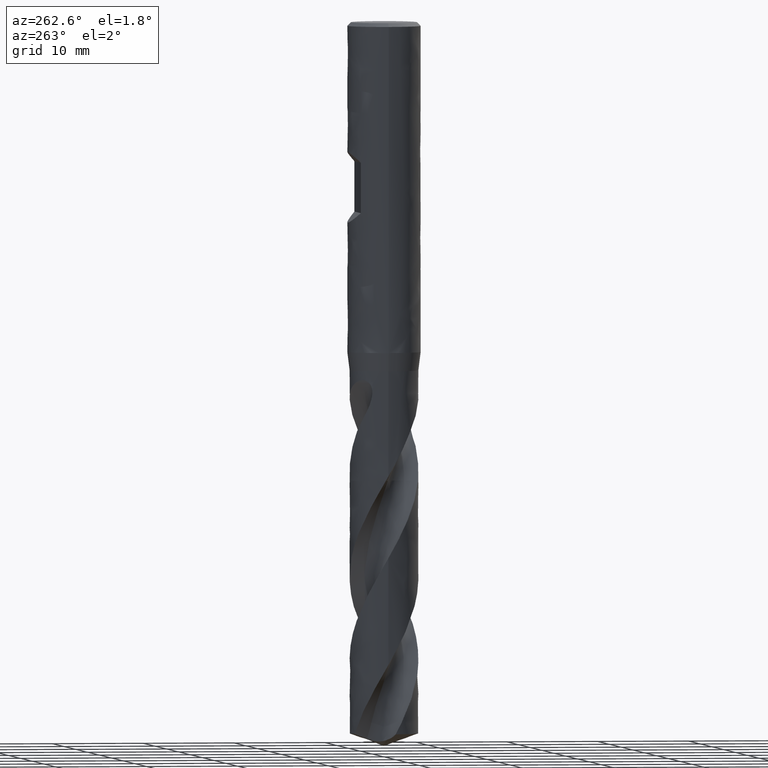
[diagram: clean part render]
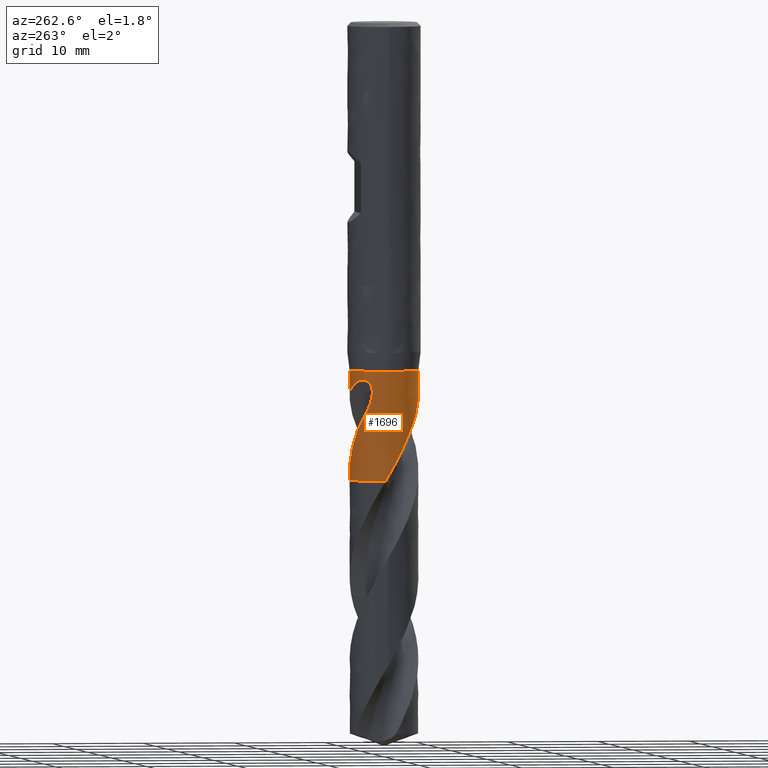
[diagram: same view with one face highlighted and labeled with its STEP entity id]
A machine part, auxiliary view. The second image highlights one B-rep face of the part: STEP entity #1696.
In plain terms, the highlighted face is a freeform B-spline surface patch.
Its self-contained STEP definition (entity closure, byte-faithful):
#75 = VERTEX_POINT('', #76);
#76 = CARTESIAN_POINT('', (-3.75, 2.5564501932201E-15, -38.));
#90 = EDGE_CURVE('', #75, #75, #91, .T.);
#91 = CIRCLE('', #92, 3.75);
#92 = AXIS2_PLACEMENT_3D('', #93, #94, #95);
#93 = CARTESIAN_POINT('', (1.42477179352876E-31, 2.32682891837997E-15, -38.));
#94 = DIRECTION('', (3.74939945665464E-33, 6.12323399573677E-17, -1.));
#95 = DIRECTION('', (-1., 6.12323399573677E-17, 0.));
#420 = VERTEX_POINT('', #421);
#421 = CARTESIAN_POINT('', (-3.73763323144449, 0.304298910944194, -50.));
#430 = VERTEX_POINT('', #431);
#431 = CARTESIAN_POINT('', (-0.648009240886986, -3.69358687778222, -41.2204141752953));
#450 = EDGE_CURVE('', #430, #451, #453, .T.);
#451 = VERTEX_POINT('', #452);
#452 = CARTESIAN_POINT('', (-3.75, 3.25878094856608E-15, -49.4699316706657));
#453 = B_SPLINE_CURVE_WITH_KNOTS('', 3, (#454, #455, #456, #457, #458, #459, #460, #461, #462, #463, #464, #465, #466, #467, #468, #469, #470, #471, #472, #473, #474, #475, #476, #477, #478, #479, #480, #481, #482, #483, #484, #485, #486, #487, #488, #489, #490, #491, #492, #493, #494, #495, #496, #497, #498, #499, #500, #501, #502, #503, #504, #505, #506, #507, #508, #509, #510, #511, #512, #513, #514, #515, #516, #517, #518, #519, #520, #521, #522, #523, #524, #525, #526, #527, #528, #529, #530, #531, #532, #533, #534, #535, #536, #537, #538, #539, #540, #541, #542, #543, #544, #545, #546, #547, #548, #549, #550, #551, #552, #553), .UNSPECIFIED., .F., .U., (4, 3, 3, 3, 3, 3, 3, 3, 3, 3, 3, 3, 3, 3, 3, 3, 3, 3, 3, 3, 3, 3, 3, 3, 3, 3, 3, 3, 3, 3, 3, 3, 3, 4), (0., 0.295133846803441, 0.590274098148489, 0.885424298112096, 1.18059786547586, 1.4758002103448, 1.77103334758276, 2.06630539326419, 2.36161880125892, 2.65697467051245, 2.95238621181922, 3.24785175122504, 3.5433583407267, 3.98669186633912, 4.18372156690037, 4.47933907525572, 4.77502744064786, 4.90640870075493, 5.10347248992651, 5.30047855240471, 5.49746644865739, 5.69447653307913, 6.13770549402274, 6.43315667880416, 6.72857332029199, 7.39264846487526, 7.83556557933928, 8.13092220187732, 8.42627691769983, 8.72163152263029, 8.91857494467247, 9.36134186348495, 9.65663631241959, 9.79135104000095), .UNSPECIFIED.);
#454 = CARTESIAN_POINT('', (-0.648009240886986, -3.69358687778222, -41.2204141752953));
#455 = CARTESIAN_POINT('', (-0.710550330238755, -3.68261456139274, -41.2955569810208));
#456 = CARTESIAN_POINT('', (-0.77246222361471, -3.67011465761915, -41.3710184245421));
#457 = CARTESIAN_POINT('', (-0.833656939838194, -3.65616138958057, -41.4467728557915));
#458 = CARTESIAN_POINT('', (-0.894852984015454, -3.64220781874959, -41.5225289309473));
#459 = CARTESIAN_POINT('', (-0.955349074183969, -3.62679683390146, -41.5985991459727));
#460 = CARTESIAN_POINT('', (-1.01505881355387, -3.61000770151903, -41.674963489374));
#461 = CARTESIAN_POINT('', (-1.07477056562593, -3.59321800320675, -41.7513304068726));
#462 = CARTESIAN_POINT('', (-1.1337095172559, -3.57504636098905, -41.8280140619983));
#463 = CARTESIAN_POINT('', (-1.19180085239418, -3.55557459888448, -41.9049915954452));
#464 = CARTESIAN_POINT('', (-1.2498967866941, -3.53610129517684, -41.981975223297));
#465 = CARTESIAN_POINT('', (-1.30716141414566, -3.51532221785342, -42.0592713573546));
#466 = CARTESIAN_POINT('', (-1.36352808481331, -3.49332093600422, -42.1368572332053));
#467 = CARTESIAN_POINT('', (-1.41990025086516, -3.47131750917296, -42.2144506731749));
#468 = CARTESIAN_POINT('', (-1.47538828735431, -3.44808611168416, -42.2923529208554));
#469 = CARTESIAN_POINT('', (-1.52992701896926, -3.42371484160522, -42.3705467938417));
#470 = CARTESIAN_POINT('', (-1.58447143948464, -3.39934102937459, -42.4487488231811));
#471 = CARTESIAN_POINT('', (-1.63807694392329, -3.37382249159239, -42.5272628996892));
#472 = CARTESIAN_POINT('', (-1.6906894474956, -3.34724800278185, -42.6060693393825));
#473 = CARTESIAN_POINT('', (-1.74330888481064, -3.32067001174929, -42.6848861648879));
#474 = CARTESIAN_POINT('', (-1.79494814518961, -3.29302922622051, -42.7640121990267));
#475 = CARTESIAN_POINT('', (-1.84556015809257, -3.26441536922944, -42.8434285582447));
#476 = CARTESIAN_POINT('', (-1.89617926083002, -3.23579750395065, -42.922856042269));
#477 = CARTESIAN_POINT('', (-1.94578184974934, -3.20619998979205, -43.0025909390289));
#478 = CARTESIAN_POINT('', (-1.99432225815474, -3.17571704196528, -43.0826198065526));
#479 = CARTESIAN_POINT('', (-2.04286964588036, -3.14522971118704, -43.1626601809241));
#480 = CARTESIAN_POINT('', (-2.09036187668851, -3.11385232101134, -43.2430133939081));
#481 = CARTESIAN_POINT('', (-2.13676917983664, -3.0816744591375, -43.3236591324331));
#482 = CARTESIAN_POINT('', (-2.18318523036419, -3.04949053201212, -43.4043200719895));
#483 = CARTESIAN_POINT('', (-2.22852603615393, -3.01649884162125, -43.4852886571491));
#484 = CARTESIAN_POINT('', (-2.27276655949607, -2.98278932645881, -43.5665468060564));
#485 = CARTESIAN_POINT('', (-2.31701516953703, -2.94907364955425, -43.6478198080922));
#486 = CARTESIAN_POINT('', (-2.3601715044041, -2.91463336096858, -43.7293975221309));
#487 = CARTESIAN_POINT('', (-2.40221030159488, -2.87956345075287, -43.8112683236893));
#488 = CARTESIAN_POINT('', (-2.44425493938777, -2.84448866814771, -43.8931504998542));
#489 = CARTESIAN_POINT('', (-2.48518810707653, -2.8087788171833, -43.9753414474045));
#490 = CARTESIAN_POINT('', (-2.52499166095661, -2.7725290101458, -44.0578296968931));
#491 = CARTESIAN_POINT('', (-2.58470691097293, -2.71814526600051, -44.1815826275098));
#492 = CARTESIAN_POINT('', (-2.64189692336124, -2.66252919821222, -44.3060439565044));
#493 = CARTESIAN_POINT('', (-2.69653240374486, -2.60599558624989, -44.431172712391));
#494 = CARTESIAN_POINT('', (-2.72081392480767, -2.5808704829291, -44.4867833979801));
#495 = CARTESIAN_POINT('', (-2.74459349494858, -2.55556199680092, -44.5425330282336));
#496 = CARTESIAN_POINT('', (-2.76787350923635, -2.53009411620747, -44.5984153995732));
#497 = CARTESIAN_POINT('', (-2.8028021509519, -2.49188286489521, -44.6822596490916));
#498 = CARTESIAN_POINT('', (-2.83661427298089, -2.45330386273877, -44.7664097022644));
#499 = CARTESIAN_POINT('', (-2.8693201651302, -2.41443612257149, -44.850846609534));
#500 = CARTESIAN_POINT('', (-2.90203389660749, -2.37555906613296, -44.9353037556219));
#501 = CARTESIAN_POINT('', (-2.93364570976184, -2.33638654711219, -45.0200597651105));
#502 = CARTESIAN_POINT('', (-2.9641453830244, -2.29702898290301, -45.1051207746284));
#503 = CARTESIAN_POINT('', (-2.97769710157367, -2.27954149612385, -45.1429153716584));
#504 = CARTESIAN_POINT('', (-2.9910295968388, -2.26201719847636, -45.1807722526423));
#505 = CARTESIAN_POINT('', (-3.00414064557416, -2.24446852987724, -45.2186937170866));
#506 = CARTESIAN_POINT('', (-3.02380641024787, -2.2181466090322, -45.2755735755097));
#507 = CARTESIAN_POINT('', (-3.0429730733654, -2.19177140762832, -45.3326035590286));
#508 = CARTESIAN_POINT('', (-3.06165736855449, -2.16535312537609, -45.3897688945698));
#509 = CARTESIAN_POINT('', (-3.08033619047737, -2.13894258193821, -45.4469174844378));
#510 = CARTESIAN_POINT('', (-3.09853420122826, -2.11248782967262, -45.5042046213359));
#511 = CARTESIAN_POINT('', (-3.11629111628299, -2.08596013350585, -45.5615923362307));
#512 = CARTESIAN_POINT('', (-3.13404639394585, -2.05943488349786, -45.6189747593179));
#513 = CARTESIAN_POINT('', (-3.15136187953422, -2.03283554620892, -45.6764604475828));
#514 = CARTESIAN_POINT('', (-3.16829608398975, -2.00609070686627, -45.7339889408728));
#515 = CARTESIAN_POINT('', (-3.18523219586699, -1.97934285505926, -45.7915239140124));
#516 = CARTESIAN_POINT('', (-3.20178813149316, -1.95244823691573, -45.8491039281012));
#517 = CARTESIAN_POINT('', (-3.21803463793604, -1.92529298265066, -45.906646918901));
#518 = CARTESIAN_POINT('', (-3.25458567130459, -1.86419968802366, -46.0361058757693));
#519 = CARTESIAN_POINT('', (-3.28956901506274, -1.80177191972681, -46.1653942545529));
#520 = CARTESIAN_POINT('', (-3.32282117231572, -1.73820581543453, -46.2945516570712));
#521 = CARTESIAN_POINT('', (-3.34498666717872, -1.69583340189659, -46.380646454478));
#522 = CARTESIAN_POINT('', (-3.36638693194216, -1.652949687878, -46.46669160047));
#523 = CARTESIAN_POINT('', (-3.38698822449555, -1.60959956732364, -46.552688103452));
#524 = CARTESIAN_POINT('', (-3.40758710840571, -1.56625451513935, -46.6386745519729));
#525 = CARTESIAN_POINT('', (-3.4273891645446, -1.52243969130668, -46.7246201394193));
#526 = CARTESIAN_POINT('', (-3.44637178764993, -1.4781818228116, -46.8105135500674));
#527 = CARTESIAN_POINT('', (-3.48904334508067, -1.37869335028753, -47.0035956960412));
#528 = CARTESIAN_POINT('', (-3.5275891428353, -1.27692470926462, -47.1964743787419));
#529 = CARTESIAN_POINT('', (-3.56174930562797, -1.17321860020193, -47.3890299792672));
#530 = CARTESIAN_POINT('', (-3.58453305360763, -1.10404990603681, -47.5174584736238));
#531 = CARTESIAN_POINT('', (-3.60536864690937, -1.03400957813836, -47.6457811591106));
#532 = CARTESIAN_POINT('', (-3.62417264702601, -0.963261451812788, -47.773993474386));
#533 = CARTESIAN_POINT('', (-3.63671198177576, -0.916083487900276, -47.8594910882078));
#534 = CARTESIAN_POINT('', (-3.64834951837257, -0.868586267162693, -47.9449501957889));
#535 = CARTESIAN_POINT('', (-3.65906443877778, -0.820821194214587, -48.0303698975625));
#536 = CARTESIAN_POINT('', (-3.66977929001133, -0.773056429620516, -48.1157890478974));
#537 = CARTESIAN_POINT('', (-3.6795733755943, -0.725015388381795, -48.2011746542537));
#538 = CARTESIAN_POINT('', (-3.68842833373284, -0.676754332765407, -48.2865278747248));
#539 = CARTESIAN_POINT('', (-3.69728328854676, -0.628493295268815, -48.3718810631496));
#540 = CARTESIAN_POINT('', (-3.70519961161688, -0.580007642059262, -48.4572100776321));
#541 = CARTESIAN_POINT('', (-3.7121603549218, -0.531380748001699, -48.5425311064951));
#542 = CARTESIAN_POINT('', (-3.71680180145266, -0.498956175101493, -48.5994234491772));
#543 = CARTESIAN_POINT('', (-3.72101853822725, -0.466468782366932, -48.6563162554463));
#544 = CARTESIAN_POINT('', (-3.72480749280603, -0.433946012236571, -48.7132157093608));
#545 = CARTESIAN_POINT('', (-3.73332579581394, -0.360828532238779, -48.8411366910853));
#546 = CARTESIAN_POINT('', (-3.73968513075875, -0.287509425397379, -48.9691044638633));
#547 = CARTESIAN_POINT('', (-3.74388316201432, -0.214100138219583, -49.0970730460324));
#548 = CARTESIAN_POINT('', (-3.74668295412515, -0.16514129761335, -49.1824191058824));
#549 = CARTESIAN_POINT('', (-3.74852194986147, -0.116135871963329, -49.267775378178));
#550 = CARTESIAN_POINT('', (-3.74939945951902, -0.0671095593673868, -49.3531241185983));
#551 = CARTESIAN_POINT('', (-3.74979978358502, -0.0447435231296308, -49.3920606186125));
#552 = CARTESIAN_POINT('', (-3.75, -0.0223722490602896, -49.4309966820091));
#553 = CARTESIAN_POINT('', (-3.75, 3.52592836386651E-15, -49.4699316706657));
#555 = EDGE_CURVE('', #420, #451, #556, .T.);
#556 = B_SPLINE_CURVE_WITH_KNOTS('', 3, (#557, #558, #559, #560), .UNSPECIFIED., .F., .U., (4, 4), (31.8302924041851, 32.4416122726892), .UNSPECIFIED.);
#557 = CARTESIAN_POINT('', (-3.73763323144449, 0.304298910944194, -50.));
#558 = CARTESIAN_POINT('', (-3.74587255501038, 0.203097202831192, -49.823325493247));
#559 = CARTESIAN_POINT('', (-3.75, 0.101522681292752, -49.6466141505479));
#560 = CARTESIAN_POINT('', (-3.75, 3.52592836386651E-15, -49.4699316706657));
#599 = VERTEX_POINT('', #600);
#600 = CARTESIAN_POINT('', (-1.04154271346582, -3.60245593672237, -50.));
#673 = EDGE_CURVE('', #674, #599, #676, .T.);
#674 = VERTEX_POINT('', #675);
#675 = CARTESIAN_POINT('', (1.02076795198592, -3.60839753743936, -46.3277837255505));
#676 = B_SPLINE_CURVE_WITH_KNOTS('', 3, (#677, #678, #679, #680, #681, #682, #683, #684, #685, #686, #687, #688, #689, #690, #691, #692, #693, #694, #695, #696, #697, #698, #699, #700, #701, #702, #703, #704, #705, #706, #707, #708, #709, #710, #711, #712, #713, #714, #715, #716, #717, #718, #719), .UNSPECIFIED., .F., .U., (4, 3, 3, 3, 3, 3, 3, 3, 3, 3, 3, 3, 3, 3, 4), (0., 0.295403872865117, 0.73827099609882, 1.181099634165, 1.6238670540652, 1.91915037336844, 2.05045930504764, 2.10883369810828, 2.16722793388203, 2.46310371451943, 2.66028253519062, 2.85745126086149, 3.30136761185504, 3.59717418767811, 4.22493399614494), .UNSPECIFIED.);
#677 = CARTESIAN_POINT('', (1.02076795198592, -3.60839753743936, -46.3277837255505));
#678 = CARTESIAN_POINT('', (0.975554255595064, -3.62118789431876, -46.414317343918));
#679 = CARTESIAN_POINT('', (0.929914459313901, -3.63318061201682, -46.5007510957833));
#680 = CARTESIAN_POINT('', (0.883896120071306, -3.64434186773456, -46.5870857788622));
#681 = CARTESIAN_POINT('', (0.814905793984192, -3.66107473302657, -46.7165180451343));
#682 = CARTESIAN_POINT('', (0.745050739911756, -3.67594174843332, -46.8457476621678));
#683 = CARTESIAN_POINT('', (0.674468879595326, -3.688846937792, -46.9747593767859));
#684 = CARTESIAN_POINT('', (0.60389315284487, -3.7017510056893, -47.1037598802818));
#685 = CARTESIAN_POINT('', (0.532574768624355, -3.71269661954483, -47.23256772144));
#686 = CARTESIAN_POINT('', (0.460652448808201, -3.72159902748899, -47.3611620647133));
#687 = CARTESIAN_POINT('', (0.388740071782856, -3.73050020473341, -47.4897386306588));
#688 = CARTESIAN_POINT('', (0.316215453102483, -3.73735881001637, -47.6181323436412));
#689 = CARTESIAN_POINT('', (0.243273001081689, -3.74210077990255, -47.7463488271795));
#690 = CARTESIAN_POINT('', (0.194627395323993, -3.74526321811525, -47.8318569001472));
#691 = CARTESIAN_POINT('', (0.14579030548463, -3.74748513517793, -47.9172963015238));
#692 = CARTESIAN_POINT('', (0.0968203971382183, -3.74874989972631, -48.0026682814986));
#693 = CARTESIAN_POINT('', (0.0750440693572635, -3.74931232527092, -48.0406321716103));
#694 = CARTESIAN_POINT('', (0.0532407864368432, -3.74968555241968, -48.0785838876448));
#695 = CARTESIAN_POINT('', (0.0314167186805429, -3.74986839632904, -48.1165240821778));
#696 = CARTESIAN_POINT('', (0.021714661911848, -3.74994968099184, -48.1333906867578));
#697 = CARTESIAN_POINT('', (0.0120084516688136, -3.74999334352105, -48.150255126128));
#698 = CARTESIAN_POINT('', (0.00229869738332198, -3.74999929546531, -48.1671174954482));
#699 = CARTESIAN_POINT('', (-0.00741435745671976, -3.75000524943276, -48.1839855966507));
#700 = CARTESIAN_POINT('', (-0.0171309956718087, -3.74997346708943, -48.200851690519));
#701 = CARTESIAN_POINT('', (-0.0268505658249607, -3.74990387171656, -48.2177158958213));
#702 = CARTESIAN_POINT('', (-0.0760983274990126, -3.74955124127274, -48.303164567981));
#703 = CARTESIAN_POINT('', (-0.125426392996611, -3.74822687909562, -48.3885685011461));
#704 = CARTESIAN_POINT('', (-0.174733868783614, -3.74592686462241, -48.4739524851063));
#705 = CARTESIAN_POINT('', (-0.207593570598373, -3.74439407900415, -48.5308544499282));
#706 = CARTESIAN_POINT('', (-0.240445346832913, -3.74242810414674, -48.5877509681759));
#707 = CARTESIAN_POINT('', (-0.273252877119313, -3.74003113157444, -48.6446531958537));
#708 = CARTESIAN_POINT('', (-0.306058727752556, -3.73763428172038, -48.7015525102977));
#709 = CARTESIAN_POINT('', (-0.338818360272944, -3.73480684418917, -48.7584619761104));
#710 = CARTESIAN_POINT('', (-0.371520710331515, -3.73155093249372, -48.8153781956692));
#711 = CARTESIAN_POINT('', (-0.445148552969943, -3.72422039650692, -48.9435224559362));
#712 = CARTESIAN_POINT('', (-0.518497792365884, -3.71471702214746, -49.0717211077288));
#713 = CARTESIAN_POINT('', (-0.591481472195746, -3.70305950101386, -49.1999132763208));
#714 = CARTESIAN_POINT('', (-0.640114626557191, -3.69529143524788, -49.2853349697405));
#715 = CARTESIAN_POINT('', (-0.688594719610076, -3.6865653110213, -49.3707621950418));
#716 = CARTESIAN_POINT('', (-0.736893619200934, -3.67688561067392, -49.4561783056713));
#717 = CARTESIAN_POINT('', (-0.839393395860566, -3.65634338026818, -49.6374481138206));
#718 = CARTESIAN_POINT('', (-0.941097227019274, -3.6314967539722, -49.8187425422837));
#719 = CARTESIAN_POINT('', (-1.04154271346582, -3.60245593672237, -50.));
#722 = VERTEX_POINT('', #723);
#723 = CARTESIAN_POINT('', (1.92935874605463, -3.21559867350117, -44.5909462419548));
#732 = EDGE_CURVE('', #733, #722, #735, .T.);
#733 = VERTEX_POINT('', #734);
#734 = CARTESIAN_POINT('', (2.6371150798521, -2.66610653493379, -39.));
#735 = B_SPLINE_CURVE_WITH_KNOTS('', 3, (#736, #737, #738, #739, #740, #741, #742, #743, #744, #745, #746, #747, #748, #749, #750, #751, #752, #753, #754, #755, #756, #757, #758, #759, #760, #761, #762, #763, #764, #765, #766, #767, #768, #769, #770, #771, #772, #773, #774, #775, #776, #777, #778, #779, #780, #781, #782, #783, #784, #785, #786, #787, #788, #789, #790, #791, #792, #793, #794, #795, #796, #797, #798, #799, #800, #801, #802, #803, #804, #805, #806, #807, #808, #809, #810, #811, #812, #813, #814, #815, #816, #817, #818, #819, #820, #821, #822, #823, #824, #825, #826, #827, #828, #829, #830, #831, #832, #833, #834, #835, #836, #837, #838, #839, #840, #841), .UNSPECIFIED., .F., .U., (4, 3, 3, 3, 3, 3, 3, 3, 3, 3, 3, 3, 3, 3, 3, 3, 3, 3, 3, 3, 3, 3, 3, 3, 3, 3, 3, 3, 3, 3, 3, 3, 3, 3, 3, 4), (0., 0.131417280996042, 0.262636607399301, 0.393628205500983, 0.524373449341624, 0.654876863062062, 0.785177828617779, 0.915353768667735, 1.04550718113931, 1.17573939671159, 1.30612584305896, 1.43670583254022, 1.56748704065535, 1.65487289147945, 1.69376959346173, 1.89047372981505, 2.08752864943431, 2.28484610224182, 2.48235189012683, 2.67998754555484, 2.87770726403293, 3.0754776130696, 3.27327283297236, 3.47107197319015, 3.76830269516791, 4.0654433215532, 4.36245225683465, 4.6593036758443, 4.95598537412121, 5.2524885446229, 5.54882508259146, 5.8450027178984, 6.14102457176276, 6.43689007259166, 6.73262877506573, 6.82472646962934), .UNSPECIFIED.);
#736 = CARTESIAN_POINT('', (2.63711507985039, -2.66610653493548, -39.));
#737 = CARTESIAN_POINT('', (2.6682592862899, -2.63530099308057, -39.0000404295012));
#738 = CARTESIAN_POINT('', (2.69889457158412, -2.60391512401424, -39.001755469018));
#739 = CARTESIAN_POINT('', (2.72883875254603, -2.57214678092115, -39.0053697520598));
#740 = CARTESIAN_POINT('', (2.75873782841899, -2.54042629066273, -39.0089785908866));
#741 = CARTESIAN_POINT('', (2.78801370862747, -2.50825326332227, -39.0144911750834));
#742 = CARTESIAN_POINT('', (2.8164491543552, -2.47590673510371, -39.0221263238338));
#743 = CARTESIAN_POINT('', (2.84483525098217, -2.44361634358493, -39.0297482219487));
#744 = CARTESIAN_POINT('', (2.87246055128404, -2.41106429440907, -39.0395097397075));
#745 = CARTESIAN_POINT('', (2.89907585167787, -2.37862548675032, -39.0515879324387));
#746 = CARTESIAN_POINT('', (2.92564109700896, -2.34624768635163, -39.0636434098638));
#747 = CARTESIAN_POINT('', (2.95128671344615, -2.313876052127, -39.0780515735906));
#748 = CARTESIAN_POINT('', (2.9757465827572, -2.28197990245507, -39.0948955393795));
#749 = CARTESIAN_POINT('', (3.00016121039856, -2.2501427488084, -39.1117083500903));
#750 = CARTESIAN_POINT('', (3.02348742495834, -2.21865804546447, -39.1310179849998));
#751 = CARTESIAN_POINT('', (3.04547263512735, -2.1880576840409, -39.1527577507244));
#752 = CARTESIAN_POINT('', (3.06742373993987, -2.15750479254041, -39.1744637918471));
#753 = CARTESIAN_POINT('', (3.08813144966379, -2.12770501115439, -39.198688884694));
#754 = CARTESIAN_POINT('', (3.10739697506926, -2.099186518471, -39.225184497702));
#755 = CARTESIAN_POINT('', (3.12664401494741, -2.07069538965984, -39.2516546878177));
#756 = CARTESIAN_POINT('', (3.14453850079771, -2.04335756716161, -39.2805095159503));
#757 = CARTESIAN_POINT('', (3.16096855144489, -2.01761686570478, -39.3113369980727));
#758 = CARTESIAN_POINT('', (3.17739575879205, -1.99188061880129, -39.3421591453496));
#759 = CARTESIAN_POINT('', (3.19243294329675, -1.96762863218436, -39.3750846823666));
#760 = CARTESIAN_POINT('', (3.2060635868567, -1.94516227524377, -39.4096054104966));
#761 = CARTESIAN_POINT('', (3.21970248326963, -1.92268231575098, -39.4441470396569));
#762 = CARTESIAN_POINT('', (3.2319903440905, -1.90189855219109, -39.4804190271971));
#763 = CARTESIAN_POINT('', (3.24298770277746, -1.88295798137775, -39.5178997568909));
#764 = CARTESIAN_POINT('', (3.25399808536289, -1.8639949797173, -39.5554248740811));
#765 = CARTESIAN_POINT('', (3.26375524834238, -1.84681143904817, -39.5942865118276));
#766 = CARTESIAN_POINT('', (3.27236533626657, -1.83142706816324, -39.6340123962759));
#767 = CARTESIAN_POINT('', (3.28098820483971, -1.81601986101398, -39.6737972490633));
#768 = CARTESIAN_POINT('', (3.28848672486831, -1.80237072246016, -39.7145588023106));
#769 = CARTESIAN_POINT('', (3.29498348519712, -1.79041443031446, -39.7559038091341));
#770 = CARTESIAN_POINT('', (3.30149025677837, -1.77843971399227, -39.7973125269889));
#771 = CARTESIAN_POINT('', (3.30700787877089, -1.76813377177474, -39.8393987956299));
#772 = CARTESIAN_POINT('', (3.31165585627535, -1.75938497481283, -39.8818519307158));
#773 = CARTESIAN_POINT('', (3.31476155834595, -1.75353917267335, -39.9102184168731));
#774 = CARTESIAN_POINT('', (3.31748218574535, -1.74838150185161, -39.938778713098));
#775 = CARTESIAN_POINT('', (3.31985014678335, -1.74387356276276, -39.967458803241));
#776 = CARTESIAN_POINT('', (3.3209041603786, -1.74186701408652, -39.9802247248243));
#777 = CARTESIAN_POINT('', (3.32188851250824, -1.73998868590515, -39.9930173535457));
#778 = CARTESIAN_POINT('', (3.32280585714919, -1.73823509218259, -40.0058309917484));
#779 = CARTESIAN_POINT('', (3.32744495188323, -1.72936701028536, -40.0706307178882));
#780 = CARTESIAN_POINT('', (3.33038298868049, -1.72367637867176, -40.136058296062));
#781 = CARTESIAN_POINT('', (3.3319124147362, -1.7207148690375, -40.2015415679786));
#782 = CARTESIAN_POINT('', (3.33344456822347, -1.71774807813138, -40.2671416164735));
#783 = CARTESIAN_POINT('', (3.33356602055537, -1.71751071819931, -40.3329491878909));
#784 = CARTESIAN_POINT('', (3.33249251266079, -1.71959112961766, -40.3985924295404));
#785 = CARTESIAN_POINT('', (3.33141757454843, -1.72167431273562, -40.4643231266544));
#786 = CARTESIAN_POINT('', (3.32914229858025, -1.72608321287269, -40.5299984234435));
#787 = CARTESIAN_POINT('', (3.32582040656868, -1.7324602804253, -40.595376689938));
#788 = CARTESIAN_POINT('', (3.32249534388579, -1.73884343474568, -40.6608173585197));
#789 = CARTESIAN_POINT('', (3.31811676180103, -1.74720643258925, -40.7260404754674));
#790 = CARTESIAN_POINT('', (3.31279113783797, -1.75724639053896, -40.7908873626642));
#791 = CARTESIAN_POINT('', (3.30746201207526, -1.76729295014163, -40.8557768891477));
#792 = CARTESIAN_POINT('', (3.30117904420854, -1.77902825745478, -40.9203494880413));
#793 = CARTESIAN_POINT('', (3.29401628355588, -1.79219327185121, -40.9845005663196));
#794 = CARTESIAN_POINT('', (3.28685047626921, -1.80536388590151, -41.0486789308449));
#795 = CARTESIAN_POINT('', (3.27879868546139, -1.81997489376212, -41.1124810888873));
#796 = CARTESIAN_POINT('', (3.26991325484468, -1.83580154313887, -41.1758391399458));
#797 = CARTESIAN_POINT('', (3.26102554891463, -1.85163224528337, -41.2392134152511));
#798 = CARTESIAN_POINT('', (3.25129848405418, -1.86868835432246, -41.3021788401227));
#799 = CARTESIAN_POINT('', (3.24076856928809, -1.88677478261567, -41.3646920645171));
#800 = CARTESIAN_POINT('', (3.23023733031895, -1.90486348539106, -41.4272131503429));
#801 = CARTESIAN_POINT('', (3.21889804358354, -1.92399117386376, -41.4893099374733));
#802 = CARTESIAN_POINT('', (3.20677763892834, -1.94398486991794, -41.5509568534079));
#803 = CARTESIAN_POINT('', (3.19465699404588, -1.96397896224857, -41.6126049911886));
#804 = CARTESIAN_POINT('', (3.18175056787973, -1.98484661488579, -41.6738257109836));
#805 = CARTESIAN_POINT('', (3.1680805202432, -2.00643111450553, -41.734607335066));
#806 = CARTESIAN_POINT('', (3.1475386810623, -2.03886591881478, -41.8259432528517));
#807 = CARTESIAN_POINT('', (3.12526199501863, -2.07293332691324, -41.9163365153016));
#808 = CARTESIAN_POINT('', (3.1013108658107, -2.10816766733684, -42.005785485278));
#809 = CARTESIAN_POINT('', (3.07736699658977, -2.14339132764382, -42.0952073417788));
#810 = CARTESIAN_POINT('', (3.05173609526673, -2.1798009909193, -42.1837322597447));
#811 = CARTESIAN_POINT('', (3.02447974715309, -2.21698494786518, -42.2713948422534));
#812 = CARTESIAN_POINT('', (2.99723547890417, -2.25415242508428, -42.359018573184));
#813 = CARTESIAN_POINT('', (2.96835578740216, -2.29210880851496, -42.4458170301574));
#814 = CARTESIAN_POINT('', (2.93791768056344, -2.3304805732365, -42.5318560856013));
#815 = CARTESIAN_POINT('', (2.90749571632698, -2.36883198780489, -42.6178495109323));
#816 = CARTESIAN_POINT('', (2.87550617325235, -2.40761203286192, -42.7031121442896));
#817 = CARTESIAN_POINT('', (2.84203970423943, -2.44648938675939, -42.7877274083576));
#818 = CARTESIAN_POINT('', (2.80859236922176, -2.48534451306228, -42.8722942948074));
#819 = CARTESIAN_POINT('', (2.77366032737526, -2.52430765770652, -42.9562370011173));
#820 = CARTESIAN_POINT('', (2.7373597468444, -2.56307659197996, -43.0396590661362));
#821 = CARTESIAN_POINT('', (2.70108101013445, -2.60182219710427, -43.1230309320504));
#822 = CARTESIAN_POINT('', (2.6634293319033, -2.64038028927926, -43.2059035653106));
#823 = CARTESIAN_POINT('', (2.6245438265322, -2.6784827239711, -43.2883921016191));
#824 = CARTESIAN_POINT('', (2.5856801745202, -2.71656374538361, -43.3708342799958));
#825 = CARTESIAN_POINT('', (2.54557482902086, -2.75419863023207, -43.4529072189859));
#826 = CARTESIAN_POINT('', (2.50439304812864, -2.7911494873055, -43.5347360372537));
#827 = CARTESIAN_POINT('', (2.46323334988151, -2.82808053045529, -43.6165209769735));
#828 = CARTESIAN_POINT('', (2.42099089094853, -2.86433467244727, -43.6980760893453));
#829 = CARTESIAN_POINT('', (2.37786856365152, -2.89969672448711, -43.7795425808428));
#830 = CARTESIAN_POINT('', (2.33476891753483, -2.93504017704196, -43.8609662231645));
#831 = CARTESIAN_POINT('', (2.29078596838029, -2.96949602634463, -43.9423170305049));
#832 = CARTESIAN_POINT('', (2.2461507129811, -3.00288311037484, -44.0237390499973));
#833 = CARTESIAN_POINT('', (2.20153903306318, -3.03625255999102, -44.1051180639489));
#834 = CARTESIAN_POINT('', (2.15626848225364, -3.06856003455226, -44.1865813582732));
#835 = CARTESIAN_POINT('', (2.11058593433816, -3.09966562935003, -44.2682625241118));
#836 = CARTESIAN_POINT('', (2.06492296448064, -3.13075789329903, -44.3499086840527));
#837 = CARTESIAN_POINT('', (2.01884098879748, -3.16065457603457, -44.4317868056723));
#838 = CARTESIAN_POINT('', (1.97259954831314, -3.18925555921672, -44.5140160223153));
#839 = CARTESIAN_POINT('', (1.95819923470427, -3.19816235630244, -44.5396234968029));
#840 = CARTESIAN_POINT('', (1.94378297342664, -3.20694413913263, -44.5652658308292));
#841 = CARTESIAN_POINT('', (1.92935874605463, -3.21559867350117, -44.5909462419548));
#843 = EDGE_CURVE('', #733, #844, #846, .T.);
#844 = VERTEX_POINT('', #845);
#845 = CARTESIAN_POINT('', (2.6348547856778, -2.66834035654951, -39.));
#846 = LINE('', #847, #848);
#847 = CARTESIAN_POINT('', (2.6371150798521, -2.66610653493379, -39.));
#848 = VECTOR('', #849, 0.00317787488193326);
#849 = DIRECTION('', (-0.00226029417429485, -0.00223382161572294, 0.));
#851 = EDGE_CURVE('', #844, #430, #852, .T.);
#852 = B_SPLINE_CURVE_WITH_KNOTS('', 3, (#853, #854, #855, #856, #857, #858, #859, #860, #861, #862, #863, #864, #865, #866, #867, #868, #869, #870, #871, #872, #873, #874, #875, #876, #877, #878, #879, #880, #881, #882, #883, #884, #885, #886, #887, #888, #889, #890, #891, #892, #893, #894, #895, #896, #897, #898, #899, #900, #901, #902, #903, #904, #905, #906, #907, #908, #909, #910, #911, #912, #913, #914, #915, #916), .UNSPECIFIED., .F., .U., (4, 3, 3, 3, 3, 3, 3, 3, 3, 3, 3, 3, 3, 3, 3, 3, 3, 3, 3, 3, 3, 4), (0., 0.131490502076642, 0.262776425271715, 0.39389897037994, 0.524892412722011, 0.720903301936283, 0.916654035829249, 1.11222513877361, 1.30767289937623, 1.50303716855077, 1.69834664123014, 1.98996152834197, 2.28152382180528, 2.57308920910896, 2.86469774632364, 3.1563801220159, 3.3517338304837, 3.39060515928735, 3.68432929852823, 3.97802892967202, 4.27173764357677, 4.31464617207614), .UNSPECIFIED.);
#853 = CARTESIAN_POINT('', (2.63485478568019, -2.66834035654716, -39.));
#854 = CARTESIAN_POINT('', (2.60366711776213, -2.69913664378482, -39.0000404093541));
#855 = CARTESIAN_POINT('', (2.57191712512801, -2.72940530748686, -39.0017507765369));
#856 = CARTESIAN_POINT('', (2.53975414798396, -2.75901229931986, -39.0049213453407));
#857 = CARTESIAN_POINT('', (2.50764121145721, -2.78857322725333, -39.0080869812299));
#858 = CARTESIAN_POINT('', (2.4750703903372, -2.81751785690468, -39.0127123150212));
#859 = CARTESIAN_POINT('', (2.44216390730832, -2.84575744747168, -39.0186114083855));
#860 = CARTESIAN_POINT('', (2.40929837458173, -2.87396189542653, -39.0245031606536));
#861 = CARTESIAN_POINT('', (2.37605933063469, -2.9014968129842, -39.0316722668771));
#862 = CARTESIAN_POINT('', (2.34254779773546, -2.92830493892366, -39.0399577009023));
#863 = CARTESIAN_POINT('', (2.30906926016584, -2.95508666968287, -39.0482349771203));
#864 = CARTESIAN_POINT('', (2.27528604916562, -2.98116959578622, -39.0576344667633));
#865 = CARTESIAN_POINT('', (2.24128285665123, -3.00651811178391, -39.0680182289616));
#866 = CARTESIAN_POINT('', (2.19040247759023, -3.04444814150246, -39.0835558805073));
#867 = CARTESIAN_POINT('', (2.13895529397182, -3.08078801667192, -39.1013176756465));
#868 = CARTESIAN_POINT('', (2.08717507338556, -3.11547752568334, -39.120922916374));
#869 = CARTESIAN_POINT('', (2.03546357806237, -3.15012099306717, -39.1405021360589));
#870 = CARTESIAN_POINT('', (1.98334311299743, -3.18317105943134, -39.1619496663523));
#871 = CARTESIAN_POINT('', (1.93100366244877, -3.21461115154064, -39.1849648124268));
#872 = CARTESIAN_POINT('', (1.87871224127382, -3.24602239260321, -39.2079588386186));
#873 = CARTESIAN_POINT('', (1.82613874992105, -3.27586540120379, -39.2325461299089));
#874 = CARTESIAN_POINT('', (1.77344253857673, -3.30414914348104, -39.2584868944861));
#875 = CARTESIAN_POINT('', (1.72077956156004, -3.33241504783156, -39.2844112988004));
#876 = CARTESIAN_POINT('', (1.66794040907348, -3.35915281587142, -39.3117143466638));
#877 = CARTESIAN_POINT('', (1.61506228422016, -3.3843867713501, -39.3402025308629));
#878 = CARTESIAN_POINT('', (1.56220674785874, -3.40960994738075, -39.3686785454716));
#879 = CARTESIAN_POINT('', (1.50926619265039, -3.43335282515347, -39.398363879923));
#880 = CARTESIAN_POINT('', (1.45636126886745, -3.45564926671426, -39.4291004619446));
#881 = CARTESIAN_POINT('', (1.40347118405385, -3.47793945448637, -39.4598284228556));
#882 = CARTESIAN_POINT('', (1.35057653184001, -3.49880110316783, -39.491630661058));
#883 = CARTESIAN_POINT('', (1.29778519665119, -3.51827423367701, -39.5243765499817));
#884 = CARTESIAN_POINT('', (1.21896290994703, -3.54734939668497, -39.573269153965));
#885 = CARTESIAN_POINT('', (1.14027627990422, -3.57336312561754, -39.6243225638734));
#886 = CARTESIAN_POINT('', (1.06204386670388, -3.59646532378621, -39.6771882680123));
#887 = CARTESIAN_POINT('', (0.983825562961683, -3.61956335540185, -39.7300444376576));
#888 = CARTESIAN_POINT('', (0.905961252788113, -3.63978087449084, -39.7847808324581));
#889 = CARTESIAN_POINT('', (0.828732006381056, -3.65728085626461, -39.8411261154169));
#890 = CARTESIAN_POINT('', (0.751501940475164, -3.67478102373507, -39.8974719962697));
#891 = CARTESIAN_POINT('', (0.674821428421336, -3.68958321852288, -39.9554898055934));
#892 = CARTESIAN_POINT('', (0.598942794608102, -3.7018600093449, -40.0149650993559));
#893 = CARTESIAN_POINT('', (0.52305293121674, -3.71413861705759, -40.0744491951017));
#894 = CARTESIAN_POINT('', (0.447891214700431, -3.72390318061647, -40.1354495613603));
#895 = CARTESIAN_POINT('', (0.373687353055116, -3.73133458191163, -40.1977950055509));
#896 = CARTESIAN_POINT('', (0.299464702178775, -3.73876786491904, -40.2601562362913));
#897 = CARTESIAN_POINT('', (0.226135842024504, -3.7438733421468, -40.3239177205144));
#898 = CARTESIAN_POINT('', (0.153912443781349, -3.74684012998299, -40.3889420053239));
#899 = CARTESIAN_POINT('', (0.105540962126138, -3.74882713041338, -40.4324918946438));
#900 = CARTESIAN_POINT('', (0.057643410623038, -3.74985612863981, -40.4766278056466));
#901 = CARTESIAN_POINT('', (0.0102753682383784, -3.74998592221459, -40.5213110573444));
#902 = CARTESIAN_POINT('', (0.000850112046618611, -3.75001174843904, -40.5302020959757));
#903 = CARTESIAN_POINT('', (-0.00855456960139373, -3.75000198332476, -40.5391151695118));
#904 = CARTESIAN_POINT('', (-0.017938256819967, -3.74995709561353, -40.5480499939922));
#905 = CARTESIAN_POINT('', (-0.0888443857332189, -3.74961790977269, -40.6155643731128));
#906 = CARTESIAN_POINT('', (-0.158578407325767, -3.74727199828066, -40.6843467392972));
#907 = CARTESIAN_POINT('', (-0.226969509509388, -3.74312501016905, -40.7542856067762));
#908 = CARTESIAN_POINT('', (-0.29535490519651, -3.73897836807867, -40.8242186386144));
#909 = CARTESIAN_POINT('', (-0.362443262931455, -3.73302827189152, -40.8953548265106));
#910 = CARTESIAN_POINT('', (-0.428081004910762, -3.72548609623423, -40.9675987767086));
#911 = CARTESIAN_POINT('', (-0.493720776759559, -3.7179436873326, -41.0398449610753));
#912 = CARTESIAN_POINT('', (-0.557948303109349, -3.70880489846436, -41.1132449227318));
#913 = CARTESIAN_POINT('', (-0.620633404314052, -3.69828530233263, -41.1877089739252));
#914 = CARTESIAN_POINT('', (-0.62979120360359, -3.69674847223855, -41.1985875849829));
#915 = CARTESIAN_POINT('', (-0.638916599890714, -3.69518210637292, -41.2094894126633));
#916 = CARTESIAN_POINT('', (-0.648009240886986, -3.69358687778222, -41.2204141752953));
#1013 = EDGE_CURVE('', #722, #674, #1014, .T.);
#1014 = B_SPLINE_CURVE_WITH_KNOTS('', 3, (#1015, #1016, #1017, #1018, #1019, #1020, #1021, #1022, #1023, #1024, #1025, #1026, #1027, #1028, #1029, #1030, #1031, #1032, #1033, #1034, #1035, #1036, #1037, #1038, #1039, #1040, #1041, #1042), .UNSPECIFIED., .F., .U., (4, 3, 3, 3, 3, 3, 3, 3, 3, 4), (0., 0.295489765091771, 0.59108180076374, 0.722447567801552, 0.853807973557614, 1.05080414741633, 1.24776602270372, 1.44473356163744, 1.53230255157831, 2.00134854833594), .UNSPECIFIED.);
#1015 = CARTESIAN_POINT('', (1.92935874605463, -3.21559867350117, -44.5909462419548));
#1016 = CARTESIAN_POINT('', (1.88307950336587, -3.24336621252218, -44.6733402550395));
#1017 = CARTESIAN_POINT('', (1.83688661266497, -3.26972216145551, -44.7562720251446));
#1018 = CARTESIAN_POINT('', (1.7909352565885, -3.29470042746096, -44.8397354124556));
#1019 = CARTESIAN_POINT('', (1.74496799650317, -3.3196873385772, -44.9232276868891));
#1020 = CARTESIAN_POINT('', (1.69923041219378, -3.34330146253941, -45.0072711070741));
#1021 = CARTESIAN_POINT('', (1.65392154164252, -3.36556734208228, -45.0918857126368));
#1022 = CARTESIAN_POINT('', (1.63378556429776, -3.37546265045306, -45.1294897791234));
#1023 = CARTESIAN_POINT('', (1.61373341255249, -3.38509232801171, -45.1672098937058));
#1024 = CARTESIAN_POINT('', (1.59378645361729, -3.39445794498415, -45.2050496158992));
#1025 = CARTESIAN_POINT('', (1.57384030875465, -3.40382317972831, -45.2428877937831));
#1026 = CARTESIAN_POINT('', (1.5540011244894, -3.41292373106067, -45.2808489903792));
#1027 = CARTESIAN_POINT('', (1.53426365793714, -3.42177366696474, -45.3189199119711));
#1028 = CARTESIAN_POINT('', (1.50466413462508, -3.43504557718733, -45.3760134162559));
#1029 = CARTESIAN_POINT('', (1.47529332075807, -3.44775456265326, -45.4333590785473));
#1030 = CARTESIAN_POINT('', (1.44608856982827, -3.45996067148344, -45.4908919999327));
#1031 = CARTESIAN_POINT('', (1.41688890367353, -3.4721646551348, -45.5484149043874));
#1032 = CARTESIAN_POINT('', (1.3878532185405, -3.48386723315099, -45.6061290820202));
#1033 = CARTESIAN_POINT('', (1.35886321018235, -3.49513816265007, -45.6639476588017));
#1034 = CARTESIAN_POINT('', (1.32987236821539, -3.50640941624516, -45.7217678981585));
#1035 = CARTESIAN_POINT('', (1.30092544110397, -3.51725009253903, -45.7796952096878));
#1036 = CARTESIAN_POINT('', (1.27185073497016, -3.52773237476369, -45.8376216576839));
#1037 = CARTESIAN_POINT('', (1.25892453066894, -3.53239264960724, -45.8633749395157));
#1038 = CARTESIAN_POINT('', (1.24597197612584, -3.53698221696121, -45.8891279087482));
#1039 = CARTESIAN_POINT('', (1.23297595062976, -3.54150678457188, -45.9148702484554));
#1040 = CARTESIAN_POINT('', (1.16336530721804, -3.56574173722209, -46.0527540061078));
#1041 = CARTESIAN_POINT('', (1.09255882962425, -3.58808884739681, -46.1903845544207));
#1042 = CARTESIAN_POINT('', (1.02076795198592, -3.60839753743936, -46.3277837255505));
#1064 = VERTEX_POINT('', #1065);
#1065 = CARTESIAN_POINT('', (1.04154271346582, 3.60245593672238, -50.));
#1138 = EDGE_CURVE('', #1139, #1064, #1141, .T.);
#1139 = VERTEX_POINT('', #1140);
#1140 = CARTESIAN_POINT('', (-1.02076795198594, 3.60839753743936, -46.3277837255505));
#1141 = B_SPLINE_CURVE_WITH_KNOTS('', 3, (#1142, #1143, #1144, #1145, #1146, #1147, #1148, #1149, #1150, #1151, #1152, #1153, #1154, #1155, #1156, #1157, #1158, #1159, #1160, #1161, #1162, #1163, #1164, #1165, #1166, #1167, #1168, #1169, #1170, #1171, #1172, #1173, #1174, #1175, #1176, #1177, #1178, #1179, #1180, #1181, #1182, #1183, #1184), .UNSPECIFIED., .F., .U., (4, 3, 3, 3, 3, 3, 3, 3, 3, 3, 3, 3, 3, 3, 4), (0., 0.295403872865114, 0.738270996098812, 1.18109963416499, 1.62386705406519, 1.91915037336843, 2.05045930504764, 2.10883369810828, 2.16722793388202, 2.46310371451943, 2.66028253519061, 2.85745126086148, 3.30136761185503, 3.5971741876781, 4.22493399614493), .UNSPECIFIED.);
#1142 = CARTESIAN_POINT('', (-1.02076795198592, 3.60839753743937, -46.3277837255505));
#1143 = CARTESIAN_POINT('', (-0.975554255595062, 3.62118789431877, -46.414317343918));
#1144 = CARTESIAN_POINT('', (-0.929914459313897, 3.63318061201682, -46.5007510957833));
#1145 = CARTESIAN_POINT('', (-0.883896120071302, 3.64434186773456, -46.5870857788623));
#1146 = CARTESIAN_POINT('', (-0.814905793984189, 3.66107473302658, -46.7165180451343));
#1147 = CARTESIAN_POINT('', (-0.745050739911755, 3.67594174843333, -46.8457476621678));
#1148 = CARTESIAN_POINT('', (-0.674468879595325, 3.688846937792, -46.9747593767859));
#1149 = CARTESIAN_POINT('', (-0.60389315284487, 3.7017510056893, -47.1037598802818));
#1150 = CARTESIAN_POINT('', (-0.532574768624355, 3.71269661954484, -47.23256772144));
#1151 = CARTESIAN_POINT('', (-0.460652448808202, 3.72159902748899, -47.3611620647133));
#1152 = CARTESIAN_POINT('', (-0.388740071782856, 3.73050020473341, -47.4897386306588));
#1153 = CARTESIAN_POINT('', (-0.316215453102485, 3.73735881001637, -47.6181323436412));
#1154 = CARTESIAN_POINT('', (-0.24327300108169, 3.74210077990256, -47.7463488271795));
#1155 = CARTESIAN_POINT('', (-0.194627395323994, 3.74526321811525, -47.8318569001472));
#1156 = CARTESIAN_POINT('', (-0.145790305484632, 3.74748513517794, -47.9172963015238));
#1157 = CARTESIAN_POINT('', (-0.0968203971382214, 3.74874989972632, -48.0026682814986));
#1158 = CARTESIAN_POINT('', (-0.0750440693572661, 3.74931232527093, -48.0406321716103));
#1159 = CARTESIAN_POINT('', (-0.0532407864368441, 3.74968555241969, -48.0785838876448));
#1160 = CARTESIAN_POINT('', (-0.0314167186805434, 3.74986839632905, -48.1165240821778));
#1161 = CARTESIAN_POINT('', (-0.0217146619118485, 3.74994968099184, -48.1333906867578));
#1162 = CARTESIAN_POINT('', (-0.0120084516688148, 3.74999334352106, -48.150255126128));
#1163 = CARTESIAN_POINT('', (-0.00229869738332314, 3.74999929546532, -48.1671174954482));
#1164 = CARTESIAN_POINT('', (0.00741435745671844, 3.75000524943277, -48.1839855966508));
#1165 = CARTESIAN_POINT('', (0.0171309956718084, 3.74997346708944, -48.2008516905191));
#1166 = CARTESIAN_POINT('', (0.0268505658249602, 3.74990387171657, -48.2177158958213));
#1167 = CARTESIAN_POINT('', (0.0760983274990124, 3.74955124127275, -48.303164567981));
#1168 = CARTESIAN_POINT('', (0.12542639299661, 3.74822687909563, -48.3885685011461));
#1169 = CARTESIAN_POINT('', (0.174733868783614, 3.74592686462242, -48.4739524851063));
#1170 = CARTESIAN_POINT('', (0.207593570598372, 3.74439407900415, -48.5308544499282));
#1171 = CARTESIAN_POINT('', (0.240445346832912, 3.74242810414675, -48.5877509681759));
#1172 = CARTESIAN_POINT('', (0.273252877119311, 3.74003113157445, -48.6446531958537));
#1173 = CARTESIAN_POINT('', (0.306058727752554, 3.73763428172039, -48.7015525102977));
#1174 = CARTESIAN_POINT('', (0.338818360272944, 3.73480684418917, -48.7584619761104));
#1175 = CARTESIAN_POINT('', (0.371520710331514, 3.73155093249372, -48.8153781956692));
#1176 = CARTESIAN_POINT('', (0.445148552969943, 3.72422039650693, -48.9435224559362));
#1177 = CARTESIAN_POINT('', (0.518497792365884, 3.71471702214746, -49.0717211077288));
#1178 = CARTESIAN_POINT('', (0.591481472195746, 3.70305950101387, -49.1999132763208));
#1179 = CARTESIAN_POINT('', (0.640114626557192, 3.69529143524788, -49.2853349697405));
#1180 = CARTESIAN_POINT('', (0.688594719610076, 3.68656531102131, -49.3707621950418));
#1181 = CARTESIAN_POINT('', (0.736893619200933, 3.67688561067393, -49.4561783056713));
#1182 = CARTESIAN_POINT('', (0.839393395860565, 3.65634338026819, -49.6374481138206));
#1183 = CARTESIAN_POINT('', (0.941097227019275, 3.63149675397221, -49.8187425422837));
#1184 = CARTESIAN_POINT('', (1.04154271346582, 3.60245593672238, -50.));
#1187 = VERTEX_POINT('', #1188);
#1188 = CARTESIAN_POINT('', (-1.92935874605463, 3.21559867350118, -44.5909462419548));
#1197 = EDGE_CURVE('', #1198, #1187, #1200, .T.);
#1198 = VERTEX_POINT('', #1199);
#1199 = CARTESIAN_POINT('', (-2.63711507985051, 2.66610653493537, -39.));
#1200 = B_SPLINE_CURVE_WITH_KNOTS('', 3, (#1201, #1202, #1203, #1204, #1205, #1206, #1207, #1208, #1209, #1210, #1211, #1212, #1213, #1214, #1215, #1216, #1217, #1218, #1219, #1220, #1221, #1222, #1223, #1224, #1225, #1226, #1227, #1228, #1229, #1230, #1231, #1232, #1233, #1234, #1235, #1236, #1237, #1238, #1239, #1240, #1241, #1242, #1243, #1244, #1245, #1246, #1247, #1248, #1249, #1250, #1251, #1252, #1253, #1254, #1255, #1256, #1257, #1258, #1259, #1260, #1261, #1262, #1263, #1264, #1265, #1266, #1267, #1268, #1269, #1270, #1271, #1272, #1273, #1274, #1275, #1276, #1277, #1278, #1279, #1280, #1281, #1282, #1283, #1284, #1285, #1286, #1287, #1288, #1289, #1290, #1291, #1292, #1293, #1294, #1295, #1296, #1297, #1298, #1299, #1300, #1301, #1302, #1303, #1304, #1305, #1306), .UNSPECIFIED., .F., .U., (4, 3, 3, 3, 3, 3, 3, 3, 3, 3, 3, 3, 3, 3, 3, 3, 3, 3, 3, 3, 3, 3, 3, 3, 3, 3, 3, 3, 3, 3, 3, 3, 3, 3, 3, 4), (0., 0.131417280996042, 0.2626366073993, 0.393628205500983, 0.524373449341624, 0.654876863062063, 0.785177828617778, 0.915353768667735, 1.04550718113931, 1.17573939671159, 1.30612584305896, 1.43670583254022, 1.56748704065535, 1.65487289147945, 1.69376959346173, 1.89047372981504, 2.0875286494343, 2.28484610224181, 2.48235189012682, 2.67998754555484, 2.87770726403293, 3.0754776130696, 3.27327283297236, 3.47107197319015, 3.76830269516791, 4.0654433215532, 4.36245225683464, 4.6593036758443, 4.9559853741212, 5.2524885446229, 5.54882508259146, 5.8450027178984, 6.14102457176276, 6.43689007259165, 6.73262877506572, 6.82472646962932), .UNSPECIFIED.);
#1201 = CARTESIAN_POINT('', (-2.6371150798504, 2.66610653493547, -39.));
#1202 = CARTESIAN_POINT('', (-2.66825928628991, 2.63530099308056, -39.0000404295012));
#1203 = CARTESIAN_POINT('', (-2.69889457158413, 2.60391512401424, -39.001755469018));
#1204 = CARTESIAN_POINT('', (-2.72883875254604, 2.57214678092114, -39.0053697520598));
#1205 = CARTESIAN_POINT('', (-2.758737828419, 2.54042629066272, -39.0089785908866));
#1206 = CARTESIAN_POINT('', (-2.78801370862747, 2.50825326332227, -39.0144911750834));
#1207 = CARTESIAN_POINT('', (-2.8164491543552, 2.4759067351037, -39.0221263238338));
#1208 = CARTESIAN_POINT('', (-2.84483525098217, 2.44361634358492, -39.0297482219487));
#1209 = CARTESIAN_POINT('', (-2.87246055128405, 2.41106429440907, -39.0395097397075));
#1210 = CARTESIAN_POINT('', (-2.89907585167788, 2.37862548675032, -39.0515879324387));
#1211 = CARTESIAN_POINT('', (-2.92564109700897, 2.34624768635162, -39.0636434098638));
#1212 = CARTESIAN_POINT('', (-2.95128671344616, 2.31387605212699, -39.0780515735906));
#1213 = CARTESIAN_POINT('', (-2.97574658275721, 2.28197990245506, -39.0948955393795));
#1214 = CARTESIAN_POINT('', (-3.00016121039857, 2.2501427488084, -39.1117083500904));
#1215 = CARTESIAN_POINT('', (-3.02348742495835, 2.21865804546446, -39.1310179849998));
#1216 = CARTESIAN_POINT('', (-3.04547263512736, 2.1880576840409, -39.1527577507244));
#1217 = CARTESIAN_POINT('', (-3.06742373993987, 2.1575047925404, -39.1744637918471));
#1218 = CARTESIAN_POINT('', (-3.0881314496638, 2.12770501115438, -39.198688884694));
#1219 = CARTESIAN_POINT('', (-3.10739697506926, 2.099186518471, -39.225184497702));
#1220 = CARTESIAN_POINT('', (-3.12664401494742, 2.07069538965984, -39.2516546878177));
#1221 = CARTESIAN_POINT('', (-3.14453850079771, 2.04335756716161, -39.2805095159503));
#1222 = CARTESIAN_POINT('', (-3.1609685514449, 2.01761686570478, -39.3113369980727));
#1223 = CARTESIAN_POINT('', (-3.17739575879205, 1.99188061880129, -39.3421591453496));
#1224 = CARTESIAN_POINT('', (-3.19243294329676, 1.96762863218435, -39.3750846823666));
#1225 = CARTESIAN_POINT('', (-3.20606358685671, 1.94516227524377, -39.4096054104967));
#1226 = CARTESIAN_POINT('', (-3.21970248326963, 1.92268231575097, -39.4441470396569));
#1227 = CARTESIAN_POINT('', (-3.23199034409051, 1.90189855219109, -39.4804190271971));
#1228 = CARTESIAN_POINT('', (-3.24298770277746, 1.88295798137775, -39.5178997568909));
#1229 = CARTESIAN_POINT('', (-3.2539980853629, 1.8639949797173, -39.5554248740811));
#1230 = CARTESIAN_POINT('', (-3.26375524834238, 1.84681143904817, -39.5942865118276));
#1231 = CARTESIAN_POINT('', (-3.27236533626657, 1.83142706816324, -39.6340123962759));
#1232 = CARTESIAN_POINT('', (-3.28098820483972, 1.81601986101398, -39.6737972490633));
#1233 = CARTESIAN_POINT('', (-3.28848672486831, 1.80237072246016, -39.7145588023106));
#1234 = CARTESIAN_POINT('', (-3.29498348519712, 1.79041443031446, -39.7559038091341));
#1235 = CARTESIAN_POINT('', (-3.30149025677837, 1.77843971399227, -39.7973125269889));
#1236 = CARTESIAN_POINT('', (-3.3070078787709, 1.76813377177474, -39.8393987956299));
#1237 = CARTESIAN_POINT('', (-3.31165585627536, 1.75938497481283, -39.8818519307158));
#1238 = CARTESIAN_POINT('', (-3.31476155834595, 1.75353917267335, -39.9102184168731));
#1239 = CARTESIAN_POINT('', (-3.31748218574535, 1.74838150185161, -39.938778713098));
#1240 = CARTESIAN_POINT('', (-3.31985014678336, 1.74387356276276, -39.967458803241));
#1241 = CARTESIAN_POINT('', (-3.3209041603786, 1.74186701408652, -39.9802247248243));
#1242 = CARTESIAN_POINT('', (-3.32188851250824, 1.73998868590516, -39.9930173535457));
#1243 = CARTESIAN_POINT('', (-3.32280585714919, 1.73823509218259, -40.0058309917484));
#1244 = CARTESIAN_POINT('', (-3.32744495188323, 1.72936701028536, -40.0706307178882));
#1245 = CARTESIAN_POINT('', (-3.33038298868049, 1.72367637867176, -40.136058296062));
#1246 = CARTESIAN_POINT('', (-3.33191241473621, 1.72071486903751, -40.2015415679786));
#1247 = CARTESIAN_POINT('', (-3.33344456822347, 1.71774807813138, -40.2671416164735));
#1248 = CARTESIAN_POINT('', (-3.33356602055537, 1.71751071819931, -40.3329491878909));
#1249 = CARTESIAN_POINT('', (-3.33249251266079, 1.71959112961767, -40.3985924295404));
#1250 = CARTESIAN_POINT('', (-3.33141757454843, 1.72167431273563, -40.4643231266544));
#1251 = CARTESIAN_POINT('', (-3.32914229858025, 1.72608321287269, -40.5299984234435));
#1252 = CARTESIAN_POINT('', (-3.32582040656868, 1.73246028042531, -40.595376689938));
#1253 = CARTESIAN_POINT('', (-3.32249534388579, 1.73884343474569, -40.6608173585197));
#1254 = CARTESIAN_POINT('', (-3.31811676180103, 1.74720643258925, -40.7260404754675));
#1255 = CARTESIAN_POINT('', (-3.31279113783797, 1.75724639053896, -40.7908873626643));
#1256 = CARTESIAN_POINT('', (-3.30746201207526, 1.76729295014164, -40.8557768891477));
#1257 = CARTESIAN_POINT('', (-3.30117904420854, 1.77902825745479, -40.9203494880413));
#1258 = CARTESIAN_POINT('', (-3.29401628355587, 1.79219327185121, -40.9845005663196));
#1259 = CARTESIAN_POINT('', (-3.28685047626921, 1.80536388590152, -41.0486789308449));
#1260 = CARTESIAN_POINT('', (-3.27879868546138, 1.81997489376212, -41.1124810888873));
#1261 = CARTESIAN_POINT('', (-3.26991325484468, 1.83580154313887, -41.1758391399458));
#1262 = CARTESIAN_POINT('', (-3.26102554891463, 1.85163224528337, -41.2392134152512));
#1263 = CARTESIAN_POINT('', (-3.25129848405417, 1.86868835432247, -41.3021788401228));
#1264 = CARTESIAN_POINT('', (-3.24076856928809, 1.88677478261568, -41.3646920645171));
#1265 = CARTESIAN_POINT('', (-3.23023733031895, 1.90486348539107, -41.4272131503429));
#1266 = CARTESIAN_POINT('', (-3.21889804358353, 1.92399117386377, -41.4893099374733));
#1267 = CARTESIAN_POINT('', (-3.20677763892834, 1.94398486991795, -41.5509568534079));
#1268 = CARTESIAN_POINT('', (-3.19465699404588, 1.96397896224857, -41.6126049911886));
#1269 = CARTESIAN_POINT('', (-3.18175056787973, 1.9848466148858, -41.6738257109836));
#1270 = CARTESIAN_POINT('', (-3.1680805202432, 2.00643111450554, -41.7346073350661));
#1271 = CARTESIAN_POINT('', (-3.1475386810623, 2.03886591881479, -41.8259432528517));
#1272 = CARTESIAN_POINT('', (-3.12526199501863, 2.07293332691325, -41.9163365153016));
#1273 = CARTESIAN_POINT('', (-3.1013108658107, 2.10816766733685, -42.005785485278));
#1274 = CARTESIAN_POINT('', (-3.07736699658977, 2.14339132764383, -42.0952073417788));
#1275 = CARTESIAN_POINT('', (-3.05173609526673, 2.17980099091931, -42.1837322597447));
#1276 = CARTESIAN_POINT('', (-3.02447974715309, 2.21698494786519, -42.2713948422534));
#1277 = CARTESIAN_POINT('', (-2.99723547890416, 2.25415242508429, -42.359018573184));
#1278 = CARTESIAN_POINT('', (-2.96835578740216, 2.29210880851497, -42.4458170301574));
#1279 = CARTESIAN_POINT('', (-2.93791768056344, 2.33048057323651, -42.5318560856013));
#1280 = CARTESIAN_POINT('', (-2.90749571632698, 2.3688319878049, -42.6178495109323));
#1281 = CARTESIAN_POINT('', (-2.87550617325234, 2.40761203286193, -42.7031121442896));
#1282 = CARTESIAN_POINT('', (-2.84203970423942, 2.4464893867594, -42.7877274083576));
#1283 = CARTESIAN_POINT('', (-2.80859236922176, 2.48534451306229, -42.8722942948074));
#1284 = CARTESIAN_POINT('', (-2.77366032737526, 2.52430765770653, -42.9562370011173));
#1285 = CARTESIAN_POINT('', (-2.7373597468444, 2.56307659197997, -43.0396590661363));
#1286 = CARTESIAN_POINT('', (-2.70108101013444, 2.60182219710428, -43.1230309320504));
#1287 = CARTESIAN_POINT('', (-2.6634293319033, 2.64038028927928, -43.2059035653106));
#1288 = CARTESIAN_POINT('', (-2.62454382653219, 2.67848272397111, -43.2883921016191));
#1289 = CARTESIAN_POINT('', (-2.5856801745202, 2.71656374538362, -43.3708342799958));
#1290 = CARTESIAN_POINT('', (-2.54557482902085, 2.75419863023207, -43.4529072189859));
#1291 = CARTESIAN_POINT('', (-2.50439304812863, 2.79114948730551, -43.5347360372537));
#1292 = CARTESIAN_POINT('', (-2.4632333498815, 2.8280805304553, -43.6165209769735));
#1293 = CARTESIAN_POINT('', (-2.42099089094852, 2.86433467244728, -43.6980760893454));
#1294 = CARTESIAN_POINT('', (-2.37786856365151, 2.89969672448712, -43.7795425808429));
#1295 = CARTESIAN_POINT('', (-2.33476891753482, 2.93504017704197, -43.8609662231645));
#1296 = CARTESIAN_POINT('', (-2.29078596838028, 2.96949602634464, -43.9423170305049));
#1297 = CARTESIAN_POINT('', (-2.24615071298109, 3.00288311037485, -44.0237390499973));
#1298 = CARTESIAN_POINT('', (-2.20153903306317, 3.03625255999103, -44.1051180639489));
#1299 = CARTESIAN_POINT('', (-2.15626848225363, 3.06856003455227, -44.1865813582732));
#1300 = CARTESIAN_POINT('', (-2.11058593433816, 3.09966562935003, -44.2682625241118));
#1301 = CARTESIAN_POINT('', (-2.06492296448063, 3.13075789329904, -44.3499086840527));
#1302 = CARTESIAN_POINT('', (-2.01884098879748, 3.16065457603458, -44.4317868056723));
#1303 = CARTESIAN_POINT('', (-1.97259954831314, 3.18925555921673, -44.5140160223154));
#1304 = CARTESIAN_POINT('', (-1.95819923470427, 3.19816235630244, -44.5396234968029));
#1305 = CARTESIAN_POINT('', (-1.94378297342664, 3.20694413913263, -44.5652658308292));
#1306 = CARTESIAN_POINT('', (-1.92935874605463, 3.21559867350118, -44.5909462419548));
#1308 = EDGE_CURVE('', #1198, #1309, #1311, .T.);
#1309 = VERTEX_POINT('', #1310);
#1310 = CARTESIAN_POINT('', (-2.63485478567939, 2.66834035654795, -39.));
#1311 = LINE('', #1312, #1313);
#1312 = CARTESIAN_POINT('', (-2.63711507985051, 2.66610653493537, -39.));
#1313 = VECTOR('', #1314, 0.00317787487746251);
#1314 = DIRECTION('', (0.00226029417111606, 0.00223382161257923, 0.));
#1316 = EDGE_CURVE('', #1309, #1317, #1319, .T.);
#1317 = VERTEX_POINT('', #1318);
#1318 = CARTESIAN_POINT('', (0.648009240886985, 3.69358687778223, -41.2204141752953));
#1319 = B_SPLINE_CURVE_WITH_KNOTS('', 3, (#1320, #1321, #1322, #1323, #1324, #1325, #1326, #1327, #1328, #1329, #1330, #1331, #1332, #1333, #1334, #1335, #1336, #1337, #1338, #1339, #1340, #1341, #1342, #1343, #1344, #1345, #1346, #1347, #1348, #1349, #1350, #1351, #1352, #1353, #1354, #1355, #1356, #1357, #1358, #1359, #1360, #1361, #1362, #1363, #1364, #1365, #1366, #1367, #1368, #1369, #1370, #1371, #1372, #1373, #1374, #1375, #1376, #1377, #1378, #1379, #1380, #1381, #1382, #1383), .UNSPECIFIED., .F., .U., (4, 3, 3, 3, 3, 3, 3, 3, 3, 3, 3, 3, 3, 3, 3, 3, 3, 3, 3, 3, 3, 4), (0., 0.131490502076641, 0.262776425271711, 0.393898970379935, 0.524892412722007, 0.720903301936281, 0.916654035829246, 1.1122251387736, 1.30767289937623, 1.50303716855076, 1.69834664123013, 1.98996152834196, 2.28152382180527, 2.57308920910895, 2.86469774632364, 3.1563801220159, 3.3517338304837, 3.39060515928734, 3.68432929852822, 3.97802892967202, 4.27173764357677, 4.3146461720765), .UNSPECIFIED.);
#1320 = CARTESIAN_POINT('', (-2.63485478568044, 2.66834035654691, -39.));
#1321 = CARTESIAN_POINT('', (-2.60366711776239, 2.69913664378458, -39.0000404093541));
#1322 = CARTESIAN_POINT('', (-2.57191712512827, 2.72940530748662, -39.0017507765369));
#1323 = CARTESIAN_POINT('', (-2.53975414798422, 2.75901229931962, -39.0049213453407));
#1324 = CARTESIAN_POINT('', (-2.50764121145747, 2.7885732272531, -39.0080869812299));
#1325 = CARTESIAN_POINT('', (-2.47507039033747, 2.81751785690445, -39.0127123150212));
#1326 = CARTESIAN_POINT('', (-2.44216390730859, 2.84575744747146, -39.0186114083855));
#1327 = CARTESIAN_POINT('', (-2.40929837458201, 2.87396189542631, -39.0245031606536));
#1328 = CARTESIAN_POINT('', (-2.37605933063497, 2.90149681298397, -39.0316722668771));
#1329 = CARTESIAN_POINT('', (-2.34254779773574, 2.92830493892345, -39.0399577009023));
#1330 = CARTESIAN_POINT('', (-2.30906926016612, 2.95508666968266, -39.0482349771202));
#1331 = CARTESIAN_POINT('', (-2.2752860491659, 2.98116959578601, -39.0576344667632));
#1332 = CARTESIAN_POINT('', (-2.24128285665151, 3.00651811178371, -39.0680182289615));
#1333 = CARTESIAN_POINT('', (-2.19040247759052, 3.04444814150227, -39.0835558805072));
#1334 = CARTESIAN_POINT('', (-2.1389552939721, 3.08078801667173, -39.1013176756464));
#1335 = CARTESIAN_POINT('', (-2.08717507338585, 3.11547752568315, -39.1209229163739));
#1336 = CARTESIAN_POINT('', (-2.03546357806265, 3.15012099306699, -39.1405021360588));
#1337 = CARTESIAN_POINT('', (-1.98334311299772, 3.18317105943116, -39.1619496663522));
#1338 = CARTESIAN_POINT('', (-1.93100366244906, 3.21461115154047, -39.1849648124266));
#1339 = CARTESIAN_POINT('', (-1.87871224127411, 3.24602239260305, -39.2079588386184));
#1340 = CARTESIAN_POINT('', (-1.82613874992134, 3.27586540120363, -39.2325461299088));
#1341 = CARTESIAN_POINT('', (-1.77344253857702, 3.30414914348089, -39.2584868944859));
#1342 = CARTESIAN_POINT('', (-1.72077956156033, 3.33241504783142, -39.2844112988002));
#1343 = CARTESIAN_POINT('', (-1.66794040907378, 3.35915281587128, -39.3117143466637));
#1344 = CARTESIAN_POINT('', (-1.61506228422045, 3.38438677134996, -39.3402025308628));
#1345 = CARTESIAN_POINT('', (-1.56220674785903, 3.40960994738062, -39.3686785454715));
#1346 = CARTESIAN_POINT('', (-1.50926619265069, 3.43335282515335, -39.3983638799228));
#1347 = CARTESIAN_POINT('', (-1.45636126886775, 3.45564926671413, -39.4291004619444));
#1348 = CARTESIAN_POINT('', (-1.40347118405415, 3.47793945448626, -39.4598284228554));
#1349 = CARTESIAN_POINT('', (-1.35057653184031, 3.49880110316772, -39.4916306610578));
#1350 = CARTESIAN_POINT('', (-1.29778519665149, 3.51827423367691, -39.5243765499816));
#1351 = CARTESIAN_POINT('', (-1.21896290994732, 3.54734939668487, -39.5732691539648));
#1352 = CARTESIAN_POINT('', (-1.14027627990452, 3.57336312561745, -39.6243225638733));
#1353 = CARTESIAN_POINT('', (-1.06204386670418, 3.59646532378613, -39.6771882680121));
#1354 = CARTESIAN_POINT('', (-0.983825562961975, 3.61956335540178, -39.7300444376574));
#1355 = CARTESIAN_POINT('', (-0.905961252788403, 3.63978087449077, -39.7847808324578));
#1356 = CARTESIAN_POINT('', (-0.828732006381344, 3.65728085626455, -39.8411261154167));
#1357 = CARTESIAN_POINT('', (-0.75150194047545, 3.67478102373502, -39.8974719962694));
#1358 = CARTESIAN_POINT('', (-0.674821428421622, 3.68958321852283, -39.9554898055932));
#1359 = CARTESIAN_POINT('', (-0.598942794608386, 3.70186000934486, -40.0149650993557));
#1360 = CARTESIAN_POINT('', (-0.523052931217022, 3.71413861705756, -40.0744491951015));
#1361 = CARTESIAN_POINT('', (-0.447891214700709, 3.72390318061644, -40.1354495613601));
#1362 = CARTESIAN_POINT('', (-0.373687353055391, 3.7313345819116, -40.1977950055507));
#1363 = CARTESIAN_POINT('', (-0.299464702179049, 3.73876786491902, -40.260156236291));
#1364 = CARTESIAN_POINT('', (-0.226135842024776, 3.74387334214679, -40.3239177205142));
#1365 = CARTESIAN_POINT('', (-0.153912443781619, 3.74684012998299, -40.3889420053236));
#1366 = CARTESIAN_POINT('', (-0.105540962126407, 3.74882713041338, -40.4324918946436));
#1367 = CARTESIAN_POINT('', (-0.0576434106233049, 3.74985612863981, -40.4766278056464));
#1368 = CARTESIAN_POINT('', (-0.0102753682386436, 3.74998592221459, -40.5213110573442));
#1369 = CARTESIAN_POINT('', (-0.000850112046884067, 3.75001174843904, -40.5302020959755));
#1370 = CARTESIAN_POINT('', (0.00855456960112837, 3.75000198332477, -40.5391151695116));
#1371 = CARTESIAN_POINT('', (0.0179382568197014, 3.74995709561353, -40.548049993992));
#1372 = CARTESIAN_POINT('', (0.088844385732957, 3.74961790977271, -40.6155643731125));
#1373 = CARTESIAN_POINT('', (0.158578407325509, 3.74727199828067, -40.6843467392969));
#1374 = CARTESIAN_POINT('', (0.226969509509134, 3.74312501016907, -40.7542856067759));
#1375 = CARTESIAN_POINT('', (0.295354905196261, 3.7389783680787, -40.8242186386141));
#1376 = CARTESIAN_POINT('', (0.362443262931209, 3.73302827189155, -40.8953548265103));
#1377 = CARTESIAN_POINT('', (0.42808100491052, 3.72548609623426, -40.9675987767083));
#1378 = CARTESIAN_POINT('', (0.493720776759322, 3.71794368733264, -41.0398449610751));
#1379 = CARTESIAN_POINT('', (0.557948303109117, 3.7088048984644, -41.1132449227315));
#1380 = CARTESIAN_POINT('', (0.620633404313824, 3.69828530233267, -41.1877089739249));
#1381 = CARTESIAN_POINT('', (0.629791203603439, 3.69674847223859, -41.1985875849827));
#1382 = CARTESIAN_POINT('', (0.638916599890638, 3.69518210637294, -41.2094894126632));
#1383 = CARTESIAN_POINT('', (0.648009240886985, 3.69358687778223, -41.2204141752953));
#1498 = EDGE_CURVE('', #1187, #1139, #1499, .T.);
#1499 = B_SPLINE_CURVE_WITH_KNOTS('', 3, (#1500, #1501, #1502, #1503, #1504, #1505, #1506, #1507, #1508, #1509, #1510, #1511, #1512, #1513, #1514, #1515, #1516, #1517, #1518, #1519, #1520, #1521, #1522, #1523, #1524, #1525, #1526, #1527), .UNSPECIFIED., .F., .U., (4, 3, 3, 3, 3, 3, 3, 3, 3, 4), (0., 0.295489765091772, 0.591081800763743, 0.722447567801554, 0.853807973557615, 1.05080414741634, 1.24776602270372, 1.44473356163743, 1.53230255157831, 2.00134854833592), .UNSPECIFIED.);
#1500 = CARTESIAN_POINT('', (-1.92935874605463, 3.21559867350118, -44.5909462419548));
#1501 = CARTESIAN_POINT('', (-1.88307950336587, 3.24336621252218, -44.6733402550395));
#1502 = CARTESIAN_POINT('', (-1.83688661266497, 3.26972216145552, -44.7562720251446));
#1503 = CARTESIAN_POINT('', (-1.79093525658851, 3.29470042746096, -44.8397354124556));
#1504 = CARTESIAN_POINT('', (-1.74496799650317, 3.3196873385772, -44.9232276868891));
#1505 = CARTESIAN_POINT('', (-1.69923041219378, 3.34330146253942, -45.0072711070742));
#1506 = CARTESIAN_POINT('', (-1.65392154164252, 3.36556734208229, -45.0918857126368));
#1507 = CARTESIAN_POINT('', (-1.63378556429776, 3.37546265045307, -45.1294897791234));
#1508 = CARTESIAN_POINT('', (-1.61373341255249, 3.38509232801171, -45.1672098937058));
#1509 = CARTESIAN_POINT('', (-1.59378645361729, 3.39445794498416, -45.2050496158992));
#1510 = CARTESIAN_POINT('', (-1.57384030875465, 3.40382317972832, -45.2428877937831));
#1511 = CARTESIAN_POINT('', (-1.5540011244894, 3.41292373106068, -45.2808489903792));
#1512 = CARTESIAN_POINT('', (-1.53426365793714, 3.42177366696475, -45.3189199119711));
#1513 = CARTESIAN_POINT('', (-1.50466413462508, 3.43504557718733, -45.3760134162559));
#1514 = CARTESIAN_POINT('', (-1.47529332075807, 3.44775456265326, -45.4333590785473));
#1515 = CARTESIAN_POINT('', (-1.44608856982827, 3.45996067148344, -45.4908919999327));
#1516 = CARTESIAN_POINT('', (-1.41688890367354, 3.47216465513481, -45.5484149043874));
#1517 = CARTESIAN_POINT('', (-1.3878532185405, 3.483867233151, -45.6061290820202));
#1518 = CARTESIAN_POINT('', (-1.35886321018235, 3.49513816265008, -45.6639476588017));
#1519 = CARTESIAN_POINT('', (-1.32987236821539, 3.50640941624517, -45.7217678981585));
#1520 = CARTESIAN_POINT('', (-1.30092544110397, 3.51725009253904, -45.7796952096878));
#1521 = CARTESIAN_POINT('', (-1.27185073497016, 3.52773237476369, -45.8376216576839));
#1522 = CARTESIAN_POINT('', (-1.25892453066894, 3.53239264960724, -45.8633749395157));
#1523 = CARTESIAN_POINT('', (-1.24597197612584, 3.53698221696121, -45.8891279087482));
#1524 = CARTESIAN_POINT('', (-1.23297595062976, 3.54150678457188, -45.9148702484554));
#1525 = CARTESIAN_POINT('', (-1.16336530721804, 3.5657417372221, -46.0527540061078));
#1526 = CARTESIAN_POINT('', (-1.09255882962426, 3.58808884739682, -46.1903845544207));
#1527 = CARTESIAN_POINT('', (-1.02076795198594, 3.60839753743936, -46.3277837255505));
#1547 = VERTEX_POINT('', #1548);
#1548 = CARTESIAN_POINT('', (3.73763323144449, -0.304298910944183, -50.));
#1555 = EDGE_CURVE('', #1317, #1547, #1556, .T.);
#1556 = B_SPLINE_CURVE_WITH_KNOTS('', 3, (#1557, #1558, #1559, #1560, #1561, #1562, #1563, #1564, #1565, #1566, #1567, #1568, #1569, #1570, #1571, #1572, #1573, #1574, #1575, #1576, #1577, #1578, #1579, #1580, #1581, #1582, #1583, #1584, #1585, #1586, #1587, #1588, #1589, #1590, #1591, #1592, #1593, #1594, #1595, #1596, #1597, #1598, #1599, #1600, #1601, #1602, #1603, #1604, #1605, #1606, #1607, #1608, #1609, #1610, #1611, #1612, #1613, #1614, #1615, #1616, #1617, #1618, #1619, #1620, #1621, #1622, #1623, #1624, #1625, #1626, #1627, #1628, #1629, #1630, #1631, #1632, #1633, #1634, #1635, #1636, #1637, #1638, #1639, #1640, #1641, #1642, #1643, #1644, #1645, #1646, #1647, #1648, #1649, #1650, #1651, #1652, #1653, #1654, #1655, #1656, #1657, #1658, #1659, #1660, #1661, #1662), .UNSPECIFIED., .F., .U., (4, 3, 3, 3, 3, 3, 3, 3, 3, 3, 3, 3, 3, 3, 3, 3, 3, 3, 3, 3, 3, 3, 3, 3, 3, 3, 3, 3, 3, 3, 3, 3, 3, 3, 3, 4), (0., 0.295133846803442, 0.590274098148488, 0.885424298112096, 1.18059786547586, 1.4758002103448, 1.77103334758276, 2.06630539326419, 2.36161880125892, 2.65697467051245, 2.95238621181922, 3.24785175122504, 3.5433583407267, 3.98669186633912, 4.18372156690037, 4.47933907525572, 4.77502744064786, 4.90640870075493, 5.10347248992651, 5.30047855240471, 5.49746644865739, 5.69447653307912, 6.13770549402273, 6.43315667880415, 6.72857332029199, 7.39264846487526, 7.83556557933927, 8.13092220187731, 8.42627691769982, 8.72163152263029, 8.91857494467247, 9.36134186348495, 9.6566363124196, 9.78794715673078, 9.87554826450061, 10.4026737499228), .UNSPECIFIED.);
#1557 = CARTESIAN_POINT('', (0.648009240886985, 3.69358687778223, -41.2204141752953));
#1558 = CARTESIAN_POINT('', (0.710550330238755, 3.68261456139274, -41.2955569810208));
#1559 = CARTESIAN_POINT('', (0.772462223614709, 3.67011465761916, -41.3710184245421));
#1560 = CARTESIAN_POINT('', (0.833656939838193, 3.65616138958057, -41.4467728557915));
#1561 = CARTESIAN_POINT('', (0.894852984015452, 3.64220781874959, -41.5225289309473));
#1562 = CARTESIAN_POINT('', (0.955349074183968, 3.62679683390147, -41.5985991459727));
#1563 = CARTESIAN_POINT('', (1.01505881355387, 3.61000770151903, -41.674963489374));
#1564 = CARTESIAN_POINT('', (1.07477056562593, 3.59321800320676, -41.7513304068726));
#1565 = CARTESIAN_POINT('', (1.1337095172559, 3.57504636098906, -41.8280140619983));
#1566 = CARTESIAN_POINT('', (1.19180085239418, 3.55557459888449, -41.9049915954452));
#1567 = CARTESIAN_POINT('', (1.24989678669409, 3.53610129517684, -41.981975223297));
#1568 = CARTESIAN_POINT('', (1.30716141414566, 3.51532221785343, -42.0592713573546));
#1569 = CARTESIAN_POINT('', (1.36352808481331, 3.49332093600422, -42.1368572332053));
#1570 = CARTESIAN_POINT('', (1.41990025086516, 3.47131750917297, -42.2144506731749));
#1571 = CARTESIAN_POINT('', (1.47538828735431, 3.44808611168416, -42.2923529208554));
#1572 = CARTESIAN_POINT('', (1.52992701896926, 3.42371484160523, -42.3705467938417));
#1573 = CARTESIAN_POINT('', (1.58447143948464, 3.3993410293746, -42.4487488231811));
#1574 = CARTESIAN_POINT('', (1.63807694392329, 3.37382249159239, -42.5272628996892));
#1575 = CARTESIAN_POINT('', (1.6906894474956, 3.34724800278186, -42.6060693393825));
#1576 = CARTESIAN_POINT('', (1.74330888481064, 3.32067001174929, -42.6848861648879));
#1577 = CARTESIAN_POINT('', (1.79494814518961, 3.29302922622052, -42.7640121990267));
#1578 = CARTESIAN_POINT('', (1.84556015809256, 3.26441536922945, -42.8434285582447));
#1579 = CARTESIAN_POINT('', (1.89617926083002, 3.23579750395066, -42.922856042269));
#1580 = CARTESIAN_POINT('', (1.94578184974934, 3.20619998979205, -43.0025909390289));
#1581 = CARTESIAN_POINT('', (1.99432225815474, 3.17571704196528, -43.0826198065526));
#1582 = CARTESIAN_POINT('', (2.04286964588036, 3.14522971118704, -43.1626601809241));
#1583 = CARTESIAN_POINT('', (2.09036187668851, 3.11385232101135, -43.2430133939081));
#1584 = CARTESIAN_POINT('', (2.13676917983664, 3.0816744591375, -43.3236591324331));
#1585 = CARTESIAN_POINT('', (2.18318523036419, 3.04949053201213, -43.4043200719895));
#1586 = CARTESIAN_POINT('', (2.22852603615393, 3.01649884162126, -43.4852886571491));
#1587 = CARTESIAN_POINT('', (2.27276655949607, 2.98278932645882, -43.5665468060564));
#1588 = CARTESIAN_POINT('', (2.31701516953703, 2.94907364955425, -43.6478198080922));
#1589 = CARTESIAN_POINT('', (2.3601715044041, 2.91463336096858, -43.7293975221309));
#1590 = CARTESIAN_POINT('', (2.40221030159488, 2.87956345075287, -43.8112683236893));
#1591 = CARTESIAN_POINT('', (2.44425493938777, 2.84448866814772, -43.8931504998542));
#1592 = CARTESIAN_POINT('', (2.48518810707653, 2.8087788171833, -43.9753414474045));
#1593 = CARTESIAN_POINT('', (2.52499166095661, 2.7725290101458, -44.0578296968931));
#1594 = CARTESIAN_POINT('', (2.58470691097293, 2.71814526600052, -44.1815826275098));
#1595 = CARTESIAN_POINT('', (2.64189692336124, 2.66252919821223, -44.3060439565044));
#1596 = CARTESIAN_POINT('', (2.69653240374486, 2.6059955862499, -44.431172712391));
#1597 = CARTESIAN_POINT('', (2.72081392480767, 2.58087048292911, -44.4867833979801));
#1598 = CARTESIAN_POINT('', (2.74459349494858, 2.55556199680093, -44.5425330282336));
#1599 = CARTESIAN_POINT('', (2.76787350923635, 2.53009411620748, -44.5984153995732));
#1600 = CARTESIAN_POINT('', (2.8028021509519, 2.49188286489522, -44.6822596490916));
#1601 = CARTESIAN_POINT('', (2.83661427298089, 2.45330386273878, -44.7664097022644));
#1602 = CARTESIAN_POINT('', (2.8693201651302, 2.4144361225715, -44.850846609534));
#1603 = CARTESIAN_POINT('', (2.90203389660749, 2.37555906613297, -44.9353037556219));
#1604 = CARTESIAN_POINT('', (2.93364570976184, 2.3363865471122, -45.0200597651105));
#1605 = CARTESIAN_POINT('', (2.96414538302439, 2.29702898290302, -45.1051207746284));
#1606 = CARTESIAN_POINT('', (2.97769710157367, 2.27954149612386, -45.1429153716584));
#1607 = CARTESIAN_POINT('', (2.9910295968388, 2.26201719847637, -45.1807722526423));
#1608 = CARTESIAN_POINT('', (3.00414064557416, 2.24446852987724, -45.2186937170866));
#1609 = CARTESIAN_POINT('', (3.02380641024787, 2.2181466090322, -45.2755735755097));
#1610 = CARTESIAN_POINT('', (3.0429730733654, 2.19177140762833, -45.3326035590286));
#1611 = CARTESIAN_POINT('', (3.06165736855449, 2.1653531253761, -45.3897688945698));
#1612 = CARTESIAN_POINT('', (3.08033619047737, 2.13894258193822, -45.4469174844378));
#1613 = CARTESIAN_POINT('', (3.09853420122826, 2.11248782967262, -45.5042046213359));
#1614 = CARTESIAN_POINT('', (3.11629111628299, 2.08596013350585, -45.5615923362307));
#1615 = CARTESIAN_POINT('', (3.13404639394585, 2.05943488349787, -45.6189747593179));
#1616 = CARTESIAN_POINT('', (3.15136187953422, 2.03283554620893, -45.6764604475828));
#1617 = CARTESIAN_POINT('', (3.16829608398975, 2.00609070686627, -45.7339889408728));
#1618 = CARTESIAN_POINT('', (3.18523219586699, 1.97934285505926, -45.7915239140124));
#1619 = CARTESIAN_POINT('', (3.20178813149315, 1.95244823691574, -45.8491039281012));
#1620 = CARTESIAN_POINT('', (3.21803463793603, 1.92529298265067, -45.906646918901));
#1621 = CARTESIAN_POINT('', (3.25458567130459, 1.86419968802367, -46.0361058757693));
#1622 = CARTESIAN_POINT('', (3.28956901506274, 1.80177191972682, -46.1653942545529));
#1623 = CARTESIAN_POINT('', (3.32282117231572, 1.73820581543454, -46.2945516570712));
#1624 = CARTESIAN_POINT('', (3.34498666717872, 1.6958334018966, -46.380646454478));
#1625 = CARTESIAN_POINT('', (3.36638693194216, 1.65294968787801, -46.46669160047));
#1626 = CARTESIAN_POINT('', (3.38698822449555, 1.60959956732365, -46.552688103452));
#1627 = CARTESIAN_POINT('', (3.40758710840571, 1.56625451513935, -46.6386745519729));
#1628 = CARTESIAN_POINT('', (3.4273891645446, 1.52243969130669, -46.7246201394193));
#1629 = CARTESIAN_POINT('', (3.44637178764993, 1.47818182281161, -46.8105135500674));
#1630 = CARTESIAN_POINT('', (3.48904334508067, 1.37869335028754, -47.0035956960412));
#1631 = CARTESIAN_POINT('', (3.5275891428353, 1.27692470926464, -47.1964743787419));
#1632 = CARTESIAN_POINT('', (3.56174930562796, 1.17321860020194, -47.3890299792671));
#1633 = CARTESIAN_POINT('', (3.58453305360763, 1.10404990603682, -47.5174584736238));
#1634 = CARTESIAN_POINT('', (3.60536864690937, 1.03400957813838, -47.6457811591106));
#1635 = CARTESIAN_POINT('', (3.62417264702601, 0.963261451812799, -47.773993474386));
#1636 = CARTESIAN_POINT('', (3.63671198177576, 0.916083487900288, -47.8594910882078));
#1637 = CARTESIAN_POINT('', (3.64834951837257, 0.868586267162704, -47.9449501957889));
#1638 = CARTESIAN_POINT('', (3.65906443877778, 0.820821194214598, -48.0303698975625));
#1639 = CARTESIAN_POINT('', (3.66977929001133, 0.773056429620528, -48.1157890478974));
#1640 = CARTESIAN_POINT('', (3.6795733755943, 0.725015388381805, -48.2011746542537));
#1641 = CARTESIAN_POINT('', (3.68842833373284, 0.676754332765417, -48.2865278747248));
#1642 = CARTESIAN_POINT('', (3.69728328854676, 0.628493295268822, -48.3718810631496));
#1643 = CARTESIAN_POINT('', (3.70519961161688, 0.580007642059272, -48.4572100776321));
#1644 = CARTESIAN_POINT('', (3.7121603549218, 0.531380748001707, -48.5425311064951));
#1645 = CARTESIAN_POINT('', (3.71680180145266, 0.498956175101501, -48.5994234491772));
#1646 = CARTESIAN_POINT('', (3.72101853822725, 0.466468782366938, -48.6563162554463));
#1647 = CARTESIAN_POINT('', (3.72480749280603, 0.433946012236577, -48.7132157093608));
#1648 = CARTESIAN_POINT('', (3.73332579581394, 0.360828532238786, -48.8411366910853));
#1649 = CARTESIAN_POINT('', (3.73968513075874, 0.287509425397385, -48.9691044638633));
#1650 = CARTESIAN_POINT('', (3.74388316201432, 0.214100138219589, -49.0970730460324));
#1651 = CARTESIAN_POINT('', (3.74668295412515, 0.165141297613356, -49.1824191058824));
#1652 = CARTESIAN_POINT('', (3.74852194986147, 0.116135871963334, -49.267775378178));
#1653 = CARTESIAN_POINT('', (3.74939945951902, 0.0671095593673914, -49.3531241185983));
#1654 = CARTESIAN_POINT('', (3.74978966845942, 0.0453086534456489, -49.3910767966995));
#1655 = CARTESIAN_POINT('', (3.74998975471974, 0.0235027768201301, -49.4290290509249));
#1656 = CARTESIAN_POINT('', (3.74999961653393, 0.0016958759857907, -49.4669802895849));
#1657 = CARTESIAN_POINT('', (3.75000619562382, -0.0128521126448202, -49.4922986139418));
#1658 = CARTESIAN_POINT('', (3.74992811562174, -0.0274007071147651, -49.5176167537542));
#1659 = CARTESIAN_POINT('', (3.7497653666778, -0.0419487170688315, -49.5429345436238));
#1660 = CARTESIAN_POINT('', (3.74878605125286, -0.129489011982827, -49.6952802458024));
#1661 = CARTESIAN_POINT('', (3.74473778939849, -0.217035266716244, -49.8476580920529));
#1662 = CARTESIAN_POINT('', (3.73763323144449, -0.304298910944183, -50.));
#1696 = ADVANCED_FACE('', (#1697), #1734, .T.);
#1697 = FACE_OUTER_BOUND('', #1698, .T.);
#1698 = EDGE_LOOP('', (#1699, #1706, #1707, #1708, #1709, #1710, #1711, #1712, #1719, #1720, #1726, #1727, #1728, #1729, #1730, #1731, #1732, #1733));
#1699 = ORIENTED_EDGE('', *, *, #1700, .F.);
#1700 = EDGE_CURVE('', #1547, #599, #1701, .T.);
#1701 = CIRCLE('', #1702, 3.75);
#1702 = AXIS2_PLACEMENT_3D('', #1703, #1704, #1705);
#1703 = CARTESIAN_POINT('', (1.87469972832732E-31, 3.06161699786838E-15, -50.));
#1704 = DIRECTION('', (3.74939945665464E-33, 6.12323399573677E-17, -1.));
#1705 = DIRECTION('', (-1., 6.12323399573677E-17, 0.));
#1706 = ORIENTED_EDGE('', *, *, #1555, .F.);
#1707 = ORIENTED_EDGE('', *, *, #1316, .F.);
#1708 = ORIENTED_EDGE('', *, *, #1308, .F.);
#1709 = ORIENTED_EDGE('', *, *, #1197, .T.);
#1710 = ORIENTED_EDGE('', *, *, #1498, .T.);
#1711 = ORIENTED_EDGE('', *, *, #1138, .T.);
#1712 = ORIENTED_EDGE('', *, *, #1713, .F.);
#1713 = EDGE_CURVE('', #420, #1064, #1714, .T.);
#1714 = CIRCLE('', #1715, 3.75);
#1715 = AXIS2_PLACEMENT_3D('', #1716, #1717, #1718);
#1716 = CARTESIAN_POINT('', (1.87469972832732E-31, 3.06161699786838E-15, -50.));
#1717 = DIRECTION('', (3.74939945665464E-33, 6.12323399573677E-17, -1.));
#1718 = DIRECTION('', (-1., 6.12323399573677E-17, 0.));
#1719 = ORIENTED_EDGE('', *, *, #555, .T.);
#1720 = ORIENTED_EDGE('', *, *, #1721, .F.);
#1721 = EDGE_CURVE('', #75, #451, #1722, .T.);
#1722 = LINE('', #1723, #1724);
#1723 = CARTESIAN_POINT('', (-3.75, 2.5564501932201E-15, -38.));
#1724 = VECTOR('', #1725, 11.4699316706657);
#1725 = DIRECTION('', (0., 7.02330755345978E-16, -11.4699316706657));
#1726 = ORIENTED_EDGE('', *, *, #90, .T.);
#1727 = ORIENTED_EDGE('', *, *, #1721, .T.);
#1728 = ORIENTED_EDGE('', *, *, #450, .F.);
#1729 = ORIENTED_EDGE('', *, *, #851, .F.);
#1730 = ORIENTED_EDGE('', *, *, #843, .F.);
#1731 = ORIENTED_EDGE('', *, *, #732, .T.);
#1732 = ORIENTED_EDGE('', *, *, #1013, .T.);
#1733 = ORIENTED_EDGE('', *, *, #673, .T.);
#1734 = (
   BOUNDED_SURFACE ()
   B_SPLINE_SURFACE (2, 1, ((#1735, #1736), (#1737, #1738), (#1739, #1740), (#1741, #1742), (#1743, #1744), (#1745, #1746), (#1747, #1748), (#1749, #1750), (#1751, #1752)), .UNSPECIFIED., .T., .F., .U.)
   B_SPLINE_SURFACE_WITH_KNOTS ((3, 2, 2, 2, 3), (2, 2), (0., 5.89048622548086, 11.7809724509617, 17.6714586764426, 23.5619449019234), (0., 0.302761857077503), .UNSPECIFIED.)
   GEOMETRIC_REPRESENTATION_ITEM ()
   RATIONAL_B_SPLINE_SURFACE (((1., 1.), (0.707106781186548, 0.707106781186548), (1., 1.), (0.707106781186548, 0.707106781186548), (1., 1.), (0.707106781186548, 0.707106781186548), (1., 1.), (0.707106781186548, 0.707106781186548), (1., 1.)))
   REPRESENTATION_ITEM ('')
   SURFACE ()
);
#1735 = CARTESIAN_POINT('', (-3.75, 2.5564501932201E-15, -38.));
#1736 = CARTESIAN_POINT('', (-3.75, 3.29123827270851E-15, -50.));
#1737 = CARTESIAN_POINT('', (-3.75, 3.75, -38.));
#1738 = CARTESIAN_POINT('', (-3.75, 3.75, -50.));
#1739 = CARTESIAN_POINT('', (1.4791141972894E-31, 3.75, -38.));
#1740 = CARTESIAN_POINT('', (1.97215226305253E-31, 3.75, -50.));
#1741 = CARTESIAN_POINT('', (3.75, 3.75, -38.));
#1742 = CARTESIAN_POINT('', (3.75, 3.75, -50.));
#1743 = CARTESIAN_POINT('', (3.75, 2.5564501932201E-15, -38.));
#1744 = CARTESIAN_POINT('', (3.75, 3.29123827270851E-15, -50.));
#1745 = CARTESIAN_POINT('', (3.75, -3.75, -38.));
#1746 = CARTESIAN_POINT('', (3.75, -3.75, -50.));
#1747 = CARTESIAN_POINT('', (4.59242549680258E-16, -3.75, -38.));
#1748 = CARTESIAN_POINT('', (4.59242549680257E-16, -3.75, -50.));
#1749 = CARTESIAN_POINT('', (-3.75, -3.75, -38.));
#1750 = CARTESIAN_POINT('', (-3.75, -3.75, -50.));
#1751 = CARTESIAN_POINT('', (-3.75, 2.5564501932201E-15, -38.));
#1752 = CARTESIAN_POINT('', (-3.75, 3.29123827270851E-15, -50.));